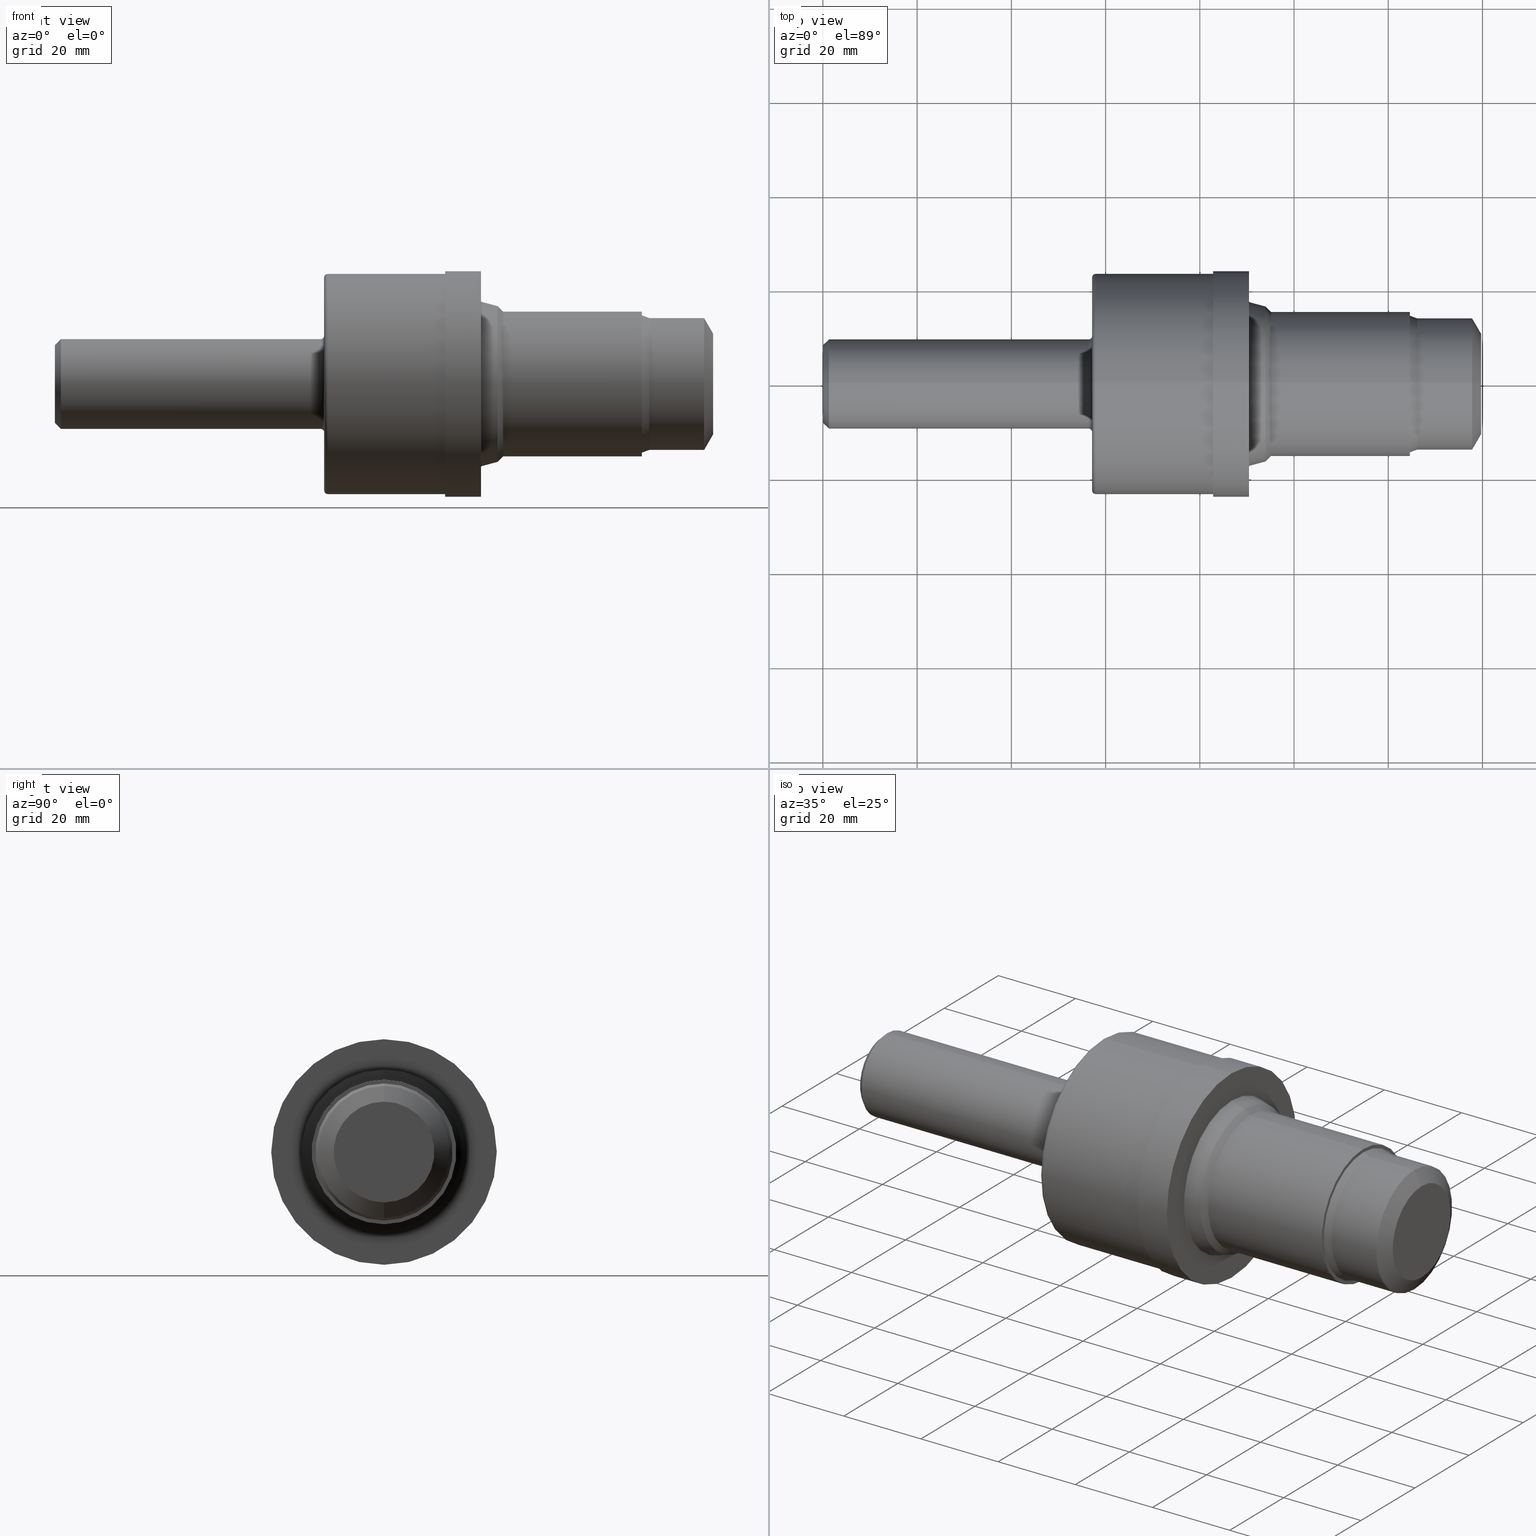
[diagram: canonical four-view strip — front | top / right | iso, engineering-drawing reading convention]
A machine part, canonical four-view strip (front | top / right | iso — engineering-drawing reading convention). The complete STEP part file that produces these views, byte-faithful:
ISO-10303-21;
HEADER;
FILE_DESCRIPTION (( 'STEP AP214' ),
    '1' );
FILE_NAME ('C16-2-ROUGH-X8.STEP',
    '2020-02-24T17:47:05',
    ( '' ),
    ( '' ),
    'SwSTEP 2.0',
    'SolidWorks 2018',
    '' );
FILE_SCHEMA (( 'AUTOMOTIVE_DESIGN' ));
ENDSEC;

DATA;
#1 = ORIENTED_EDGE ( 'NONE', *, *, #497, .T. ) ;
#2 = CIRCLE ( 'NONE', #286, 0.9425000000000000044 ) ;
#3 = CARTESIAN_POINT ( 'NONE',  ( 4.905000000000000249, 0.0000000000000000000, 0.0000000000000000000 ) ) ;
#4 = AXIS2_PLACEMENT_3D ( 'NONE', #303, #233, #90 ) ;
#5 = DIRECTION ( 'NONE',  ( 0.0000000000000000000, 0.0000000000000000000, 1.000000000000000000 ) ) ;
#6 = CARTESIAN_POINT ( 'NONE',  ( 0.0000000000000000000, 0.0000000000000000000, 0.0000000000000000000 ) ) ;
#7 = AXIS2_PLACEMENT_3D ( 'NONE', #670, #56, #376 ) ;
#8 = FACE_OUTER_BOUND ( 'NONE', #538, .T. ) ;
#9 = DIRECTION ( 'NONE',  ( 0.0000000000000000000, 0.0000000000000000000, -1.000000000000000000 ) ) ;
#10 = CARTESIAN_POINT ( 'NONE',  ( 0.0000000000000000000, 0.0000000000000000000, 0.0000000000000000000 ) ) ;
#11 = CARTESIAN_POINT ( 'NONE',  ( 0.0000000000000000000, 0.0000000000000000000, 0.3748500000000002386 ) ) ;
#12 = ADVANCED_FACE ( 'NONE', ( #463 ), #157, .F. ) ;
#13 =( GEOMETRIC_REPRESENTATION_CONTEXT ( 3 ) GLOBAL_UNCERTAINTY_ASSIGNED_CONTEXT ( ( #192 ) ) GLOBAL_UNIT_ASSIGNED_CONTEXT ( ( #537, #597, #529 ) ) REPRESENTATION_CONTEXT ( 'NONE', 'WORKASPACE' ) );
#14 = CONICAL_SURFACE ( 'NONE', #486, 0.6507730114445050562, 0.2617993877991498519 ) ;
#15 = ADVANCED_FACE ( 'NONE', ( #93, #337 ), #437, .F. ) ;
#16 = DIRECTION ( 'NONE',  ( -1.000000000000000000, -0.0000000000000000000, -0.0000000000000000000 ) ) ;
#17 = DIRECTION ( 'NONE',  ( -1.000000000000000000, 0.0000000000000000000, -0.0000000000000000000 ) ) ;
#18 = ADVANCED_FACE ( 'NONE', ( #66 ), #350, .F. ) ;
#19 = DIRECTION ( 'NONE',  ( 0.0000000000000000000, 0.0000000000000000000, 1.000000000000000000 ) ) ;
#20 = ADVANCED_FACE ( 'NONE', ( #305 ), #728, .T. ) ;
#21 = VECTOR ( 'NONE', #496, 39.37007874015748854 ) ;
#22 = VERTEX_POINT ( 'NONE', #231 ) ;
#23 = ADVANCED_FACE ( 'NONE', ( #642, #675 ), #659, .F. ) ;
#24 = ORIENTED_EDGE ( 'NONE', *, *, #535, .T. ) ;
#25 = CIRCLE ( 'NONE', #414, 0.007999999999999887410 ) ;
#26 = CARTESIAN_POINT ( 'NONE',  ( 4.905000000000000249, 0.6045000000000000373, 0.0000000000000000000 ) ) ;
#27 = ADVANCED_FACE ( 'NONE', ( #672 ), #14, .T. ) ;
#28 = ADVANCED_FACE ( 'NONE', ( #846 ), #322, .T. ) ;
#29 = DIRECTION ( 'NONE',  ( -1.000000000000000000, -0.0000000000000000000, -0.0000000000000000000 ) ) ;
#30 = ADVANCED_FACE ( 'NONE', ( #673 ), #428, .F. ) ;
#31 = DIRECTION ( 'NONE',  ( 0.0000000000000000000, 0.0000000000000000000, 1.000000000000000000 ) ) ;
#32 = CARTESIAN_POINT ( 'NONE',  ( 3.568999999999999950, 0.0000000000000000000, 0.0000000000000000000 ) ) ;
#33 = ADVANCED_FACE ( 'NONE', ( #682 ), #358, .T. ) ;
#34 = VERTEX_POINT ( 'NONE', #311 ) ;
#35 = ADVANCED_FACE ( 'NONE', ( #467 ), #57, .T. ) ;
#36 = CARTESIAN_POINT ( 'NONE',  ( 0.0000000000000000000, 6.746579216502770273E-17, -0.5509000000000000563 ) ) ;
#37 = ORIENTED_EDGE ( 'NONE', *, *, #867, .T. ) ;
#38 = CYLINDRICAL_SURFACE ( 'NONE', #442, 0.9200000000000000400 ) ;
#39 = MECHANICAL_DESIGN_GEOMETRIC_PRESENTATION_REPRESENTATION (  '', ( #58 ), #13 ) ;
#40 = ADVANCED_FACE ( 'NONE', ( #736 ), #654, .T. ) ;
#41 = ADVANCED_FACE ( 'NONE', ( #834 ), #458, .T. ) ;
#42 = FILL_AREA_STYLE ('',( #198 ) ) ;
#43 = DIRECTION ( 'NONE',  ( -1.000000000000000000, -0.0000000000000000000, -0.0000000000000000000 ) ) ;
#44 = ADVANCED_FACE ( 'NONE', ( #480 ), #85, .T. ) ;
#45 = ADVANCED_FACE ( 'NONE', ( #635, #798 ), #777, .F. ) ;
#46 = CARTESIAN_POINT ( 'NONE',  ( 5.500000000000000000, 0.0000000000000000000, 0.4209961894323342446 ) ) ;
#47 = DIRECTION ( 'NONE',  ( -1.000000000000000000, -0.0000000000000000000, -0.0000000000000000000 ) ) ;
#48 = LINE ( 'NONE', #76, #745 ) ;
#49 = VERTEX_POINT ( 'NONE', #832 ) ;
#50 = ADVANCED_FACE ( 'NONE', ( #781 ), #615, .T. ) ;
#51 = ORIENTED_EDGE ( 'NONE', *, *, #203, .F. ) ;
#52 = CIRCLE ( 'NONE', #656, 0.9425000000000000044 ) ;
#53 = PRESENTATION_LAYER_ASSIGNMENT (  '', '', ( #58 ) ) ;
#54 = ADVANCED_FACE ( 'NONE', ( #167 ), #756, .T. ) ;
#55 = ADVANCED_FACE ( 'NONE', ( #281 ), #416, .T. ) ;
#56 = DIRECTION ( 'NONE',  ( -1.000000000000000000, -0.0000000000000000000, -0.0000000000000000000 ) ) ;
#57 = CYLINDRICAL_SURFACE ( 'NONE', #666, 0.9425000000000000044 ) ;
#58 = STYLED_ITEM ( 'NONE', ( #862 ), #857 ) ;
#59 = DIRECTION ( 'NONE',  ( 0.0000000000000000000, 0.0000000000000000000, 1.000000000000000000 ) ) ;
#60 = VERTEX_POINT ( 'NONE', #375 ) ;
#61 = FACE_OUTER_BOUND ( 'NONE', #859, .T. ) ;
#62 = EDGE_LOOP ( 'NONE', ( #515, #331, #279, #830 ) ) ;
#63 = CIRCLE ( 'NONE', #92, 0.3248500000000002497 ) ;
#64 = CARTESIAN_POINT ( 'NONE',  ( 0.05000000000000000278, 4.590588526603853748E-17, 0.3748500000000000165 ) ) ;
#65 = DIRECTION ( 'NONE',  ( 0.0000000000000000000, 0.0000000000000000000, -1.000000000000000000 ) ) ;
#66 = FACE_OUTER_BOUND ( 'NONE', #62, .T. ) ;
#67 = CARTESIAN_POINT ( 'NONE',  ( 2.279999999999999805, 0.0000000000000000000, 0.9200000000000000400 ) ) ;
#68 = ADVANCED_FACE ( 'NONE', ( #235 ), #431, .T. ) ;
#69 = CARTESIAN_POINT ( 'NONE',  ( 3.566929447639179962, 8.403051286603852342E-17, -0.6861612092935190921 ) ) ;
#70 = AXIS2_PLACEMENT_3D ( 'NONE', #266, #470, #508 ) ;
#71 = CIRCLE ( 'NONE', #632, 0.9200000000000000400 ) ;
#72 = ORIENTED_EDGE ( 'NONE', *, *, #721, .T. ) ;
#73 = ORIENTED_EDGE ( 'NONE', *, *, #216, .F. ) ;
#74 = LINE ( 'NONE', #856, #769 ) ;
#75 = ADVANCED_FACE ( 'NONE', ( #600 ), #38, .T. ) ;
#76 = CARTESIAN_POINT ( 'NONE',  ( 0.0000000000000000000, 0.0000000000000000000, 0.9200000000000000400 ) ) ;
#77 = ADVANCED_FACE ( 'NONE', ( #297, #741 ), #308, .F. ) ;
#78 = ORIENTED_EDGE ( 'NONE', *, *, #216, .T. ) ;
#79 = DIRECTION ( 'NONE',  ( 0.0000000000000000000, 0.0000000000000000000, 1.000000000000000000 ) ) ;
#80 = ADVANCED_FACE ( 'NONE', ( #123 ), #722, .T. ) ;
#81 =( GEOMETRIC_REPRESENTATION_CONTEXT ( 3 ) GLOBAL_UNCERTAINTY_ASSIGNED_CONTEXT ( ( #847 ) ) GLOBAL_UNIT_ASSIGNED_CONTEXT ( ( #335, #399, #401 ) ) REPRESENTATION_CONTEXT ( 'NONE', 'WORKASPACE' ) );
#82 = ADVANCED_FACE ( 'NONE', ( #61 ), #262, .T. ) ;
#83 = VERTEX_POINT ( 'NONE', #173 ) ;
#84 = DIRECTION ( 'NONE',  ( -1.000000000000000000, -0.0000000000000000000, -0.0000000000000000000 ) ) ;
#85 = CONICAL_SURFACE ( 'NONE', #873, 0.5509000000000000563, 0.3490658503988409156 ) ;
#86 = LINE ( 'NONE', #842, #636 ) ;
#87 = ORIENTED_EDGE ( 'NONE', *, *, #110, .F. ) ;
#88 = ADVANCED_FACE ( 'NONE', ( #215 ), #572, .T. ) ;
#89 = DIRECTION ( 'NONE',  ( 0.0000000000000000000, 0.0000000000000000000, 1.000000000000000000 ) ) ;
#90 = DIRECTION ( 'NONE',  ( 0.0000000000000000000, 0.0000000000000000000, 1.000000000000000000 ) ) ;
#91 = ADVANCED_FACE ( 'NONE', ( #367 ), #861, .T. ) ;
#92 = AXIS2_PLACEMENT_3D ( 'NONE', #179, #332, #345 ) ;
#93 = FACE_OUTER_BOUND ( 'NONE', #190, .T. ) ;
#94 = ADVANCED_FACE ( 'NONE', ( #392 ), #550, .F. ) ;
#95 = PLANE ( 'NONE',  #531 ) ;
#96 = ADVANCED_FACE ( 'NONE', ( #527 ), #695, .F. ) ;
#97 = DIRECTION ( 'NONE',  ( 0.0000000000000000000, 0.0000000000000000000, 1.000000000000000000 ) ) ;
#98 = EDGE_CURVE ( 'NONE', #239, #83, #193, .T. ) ;
#99 = DIRECTION ( 'NONE',  ( -0.9396926207859168656, 4.188538737676702721E-17, -0.3420201433256451762 ) ) ;
#100 = CIRCLE ( 'NONE', #499, 0.9425000000000000044 ) ;
#101 = ORIENTED_EDGE ( 'NONE', *, *, #744, .T. ) ;
#102 = CARTESIAN_POINT ( 'NONE',  ( 2.279999999999999805, 1.089935651241144406E-16, -0.8900000000000000133 ) ) ;
#103 = ORIENTED_EDGE ( 'NONE', *, *, #698, .T. ) ;
#104 = DIRECTION ( 'NONE',  ( -1.000000000000000000, -0.0000000000000000000, -0.0000000000000000000 ) ) ;
#105 = ADVANCED_FACE ( 'NONE', ( #168 ), #500, .T. ) ;
#106 = CIRCLE ( 'NONE', #206, 0.02999999999999988440 ) ;
#107 = ADVANCED_FACE ( 'NONE', ( #8 ), #660, .T. ) ;
#108 = CARTESIAN_POINT ( 'NONE',  ( 3.261000000000000121, 0.0000000000000000000, 0.0000000000000000000 ) ) ;
#109 = EDGE_LOOP ( 'NONE', ( #221, #202, #614, #812 ) ) ;
#110 = EDGE_CURVE ( 'NONE', #49, #417, #822, .T. ) ;
#111 = DIRECTION ( 'NONE',  ( 0.0000000000000000000, 0.0000000000000000000, 1.000000000000000000 ) ) ;
#112 = AXIS2_PLACEMENT_3D ( 'NONE', #478, #773, #522 ) ;
#113 = CARTESIAN_POINT ( 'NONE',  ( 3.699000000000000288, 0.0000000000000000000, 0.0000000000000000000 ) ) ;
#114 = ADVANCED_FACE ( 'NONE', ( #837 ), #149, .T. ) ;
#115 = ADVANCED_FACE ( 'NONE', ( #487 ), #95, .F. ) ;
#116 = DIRECTION ( 'NONE',  ( 0.0000000000000000000, 0.0000000000000000000, 1.000000000000000000 ) ) ;
#117 = CARTESIAN_POINT ( 'NONE',  ( 0.0000000000000000000, 0.0000000000000000000, 0.0000000000000000000 ) ) ;
#118 = AXIS2_PLACEMENT_3D ( 'NONE', #581, #598, #595 ) ;
#119 = DIRECTION ( 'NONE',  ( -1.000000000000000000, -0.0000000000000000000, -0.0000000000000000000 ) ) ;
#120 = ORIENTED_EDGE ( 'NONE', *, *, #872, .T. ) ;
#121 = ADVANCED_FACE ( 'NONE', ( #676 ), #471, .T. ) ;
#122 = DIRECTION ( 'NONE',  ( 0.0000000000000000000, 0.0000000000000000000, 1.000000000000000000 ) ) ;
#123 = FACE_OUTER_BOUND ( 'NONE', #584, .T. ) ;
#124 = CARTESIAN_POINT ( 'NONE',  ( 3.560999999999999943, 1.154229608196380369E-16, -0.9425000000000000044 ) ) ;
#125 = VERTEX_POINT ( 'NONE', #67 ) ;
#126 = VERTEX_POINT ( 'NONE', #374 ) ;
#127 = CARTESIAN_POINT ( 'NONE',  ( 0.0000000000000000000, 4.284426826817016740E-17, 0.3248500000000002497 ) ) ;
#128 = CARTESIAN_POINT ( 'NONE',  ( 2.279999999999999805, 0.0000000000000000000, 0.0000000000000000000 ) ) ;
#129 = AXIS2_PLACEMENT_3D ( 'NONE', #743, #302, #764 ) ;
#130 = VECTOR ( 'NONE', #568, 39.37007874015748143 ) ;
#131 = ORIENTED_EDGE ( 'NONE', *, *, #536, .T. ) ;
#132 = AXIS2_PLACEMENT_3D ( 'NONE', #128, #133, #59 ) ;
#133 = DIRECTION ( 'NONE',  ( -1.000000000000000000, -0.0000000000000000000, -0.0000000000000000000 ) ) ;
#134 = ORIENTED_EDGE ( 'NONE', *, *, #640, .T. ) ;
#135 = CIRCLE ( 'NONE', #112, 0.5734661545245026693 ) ;
#136 = CARTESIAN_POINT ( 'NONE',  ( 3.568999999999999950, 0.0000000000000000000, 0.6938886159038315515 ) ) ;
#137 = DIRECTION ( 'NONE',  ( 0.0000000000000000000, -1.000000000000000000, 0.0000000000000000000 ) ) ;
#138 = ORIENTED_EDGE ( 'NONE', *, *, #408, .F. ) ;
#139 = CARTESIAN_POINT ( 'NONE',  ( 4.905000000000000249, 0.0000000000000000000, 0.0000000000000000000 ) ) ;
#140 = AXIS2_PLACEMENT_3D ( 'NONE', #650, #648, #603 ) ;
#141 = CARTESIAN_POINT ( 'NONE',  ( 3.699000000000000288, 0.0000000000000000000, 0.6507730114445050562 ) ) ;
#142 = CARTESIAN_POINT ( 'NONE',  ( 3.560999999999999943, 0.0000000000000000000, 0.0000000000000000000 ) ) ;
#143 = ORIENTED_EDGE ( 'NONE', *, *, #638, .F. ) ;
#144 = DIMENSIONAL_EXPONENTS ( 1.000000000000000000, 0.0000000000000000000, 0.0000000000000000000, 0.0000000000000000000, 0.0000000000000000000, 0.0000000000000000000, 0.0000000000000000000 ) ;
#145 = DIRECTION ( 'NONE',  ( -1.000000000000000000, -0.0000000000000000000, -0.0000000000000000000 ) ) ;
#146 = AXIS2_PLACEMENT_3D ( 'NONE', #139, #353, #438 ) ;
#147 = DIMENSIONAL_EXPONENTS ( 1.000000000000000000, 0.0000000000000000000, 0.0000000000000000000, 0.0000000000000000000, 0.0000000000000000000, 0.0000000000000000000, 0.0000000000000000000 ) ;
#148 = DIRECTION ( 'NONE',  ( 0.0000000000000000000, 0.0000000000000000000, 1.000000000000000000 ) ) ;
#149 = TOROIDAL_SURFACE ( 'NONE', #592, 0.8900000000000000133, 0.02999999999999995379 ) ;
#150 = ORIENTED_EDGE ( 'NONE', *, *, #740, .T. ) ;
#151 = DIRECTION ( 'NONE',  ( 0.0000000000000000000, 0.0000000000000000000, 1.000000000000000000 ) ) ;
#152 = ORIENTED_EDGE ( 'NONE', *, *, #440, .T. ) ;
#153 = CARTESIAN_POINT ( 'NONE',  ( 2.250000000000000000, 0.0000000000000000000, 0.0000000000000000000 ) ) ;
#154 = LINE ( 'NONE', #344, #840 ) ;
#155 = DIRECTION ( 'NONE',  ( -1.000000000000000000, -0.0000000000000000000, -0.0000000000000000000 ) ) ;
#156 = ORIENTED_EDGE ( 'NONE', *, *, #260, .F. ) ;
#157 = TOROIDAL_SURFACE ( 'NONE', #461, 0.4048500000000005983, 0.02999999999999988440 ) ;
#158 = AXIS2_PLACEMENT_3D ( 'NONE', #622, #145, #866 ) ;
#159 = EDGE_LOOP ( 'NONE', ( #723, #563, #379, #360 ) ) ;
#160 = DIRECTION ( 'NONE',  ( 1.000000000000000000, 0.0000000000000000000, 0.0000000000000000000 ) ) ;
#161 = EDGE_LOOP ( 'NONE', ( #342, #418, #212, #409 ) ) ;
#162 = AXIS2_PLACEMENT_3D ( 'NONE', #836, #844, #448 ) ;
#163 = CARTESIAN_POINT ( 'NONE',  ( 2.279999999999999805, 1.126675055215564921E-16, -0.9200000000000000400 ) ) ;
#164 = CARTESIAN_POINT ( 'NONE',  ( 2.279999999999999805, 0.0000000000000000000, 0.0000000000000000000 ) ) ;
#165 = CARTESIAN_POINT ( 'NONE',  ( 0.0000000000000000000, 0.0000000000000000000, 0.0000000000000000000 ) ) ;
#166 = CARTESIAN_POINT ( 'NONE',  ( 4.966999999999999638, 0.0000000000000000000, 0.0000000000000000000 ) ) ;
#167 = FACE_OUTER_BOUND ( 'NONE', #589, .T. ) ;
#168 = FACE_OUTER_BOUND ( 'NONE', #472, .T. ) ;
#169 = DIMENSIONAL_EXPONENTS ( 1.000000000000000000, 0.0000000000000000000, 0.0000000000000000000, 0.0000000000000000000, 0.0000000000000000000, 0.0000000000000000000, 0.0000000000000000000 ) ;
#170 = ORIENTED_EDGE ( 'NONE', *, *, #545, .T. ) ;
#171 = CIRCLE ( 'NONE', #306, 0.3748500000000000165 ) ;
#172 = EDGE_LOOP ( 'NONE', ( #103, #489 ) ) ;
#173 = CARTESIAN_POINT ( 'NONE',  ( 4.905000000000000249, 7.402989900845750385E-17, -0.6045000000000000373 ) ) ;
#174 =( GEOMETRIC_REPRESENTATION_CONTEXT ( 3 ) GLOBAL_UNCERTAINTY_ASSIGNED_CONTEXT ( ( #222 ) ) GLOBAL_UNIT_ASSIGNED_CONTEXT ( ( #547, #549, #664 ) ) REPRESENTATION_CONTEXT ( 'NONE', 'WORKASPACE' ) );
#175 = DIRECTION ( 'NONE',  ( -1.000000000000000000, -0.0000000000000000000, -0.0000000000000000000 ) ) ;
#176 = DIRECTION ( 'NONE',  ( -1.000000000000000000, -0.0000000000000000000, -0.0000000000000000000 ) ) ;
#177 = CARTESIAN_POINT ( 'NONE',  ( 5.424999999999999822, 0.0000000000000000000, 0.0000000000000000000 ) ) ;
#178 = CARTESIAN_POINT ( 'NONE',  ( 0.0000000000000000000, 0.0000000000000000000, 0.5509000000000000563 ) ) ;
#179 = CARTESIAN_POINT ( 'NONE',  ( 0.0000000000000000000, 0.0000000000000000000, 0.0000000000000000000 ) ) ;
#180 = EDGE_CURVE ( 'NONE', #540, #60, #309, .T. ) ;
#181 = ORIENTED_EDGE ( 'NONE', *, *, #726, .T. ) ;
#182 = CARTESIAN_POINT ( 'NONE',  ( 2.220000000000000195, 4.774285546475963101E-17, -0.3748500000000005161 ) ) ;
#183 = CIRCLE ( 'NONE', #356, 0.4209961894323342446 ) ;
#184 = DIRECTION ( 'NONE',  ( 0.7071067811865489050, 8.659560562354915602E-17, 0.7071067811865461294 ) ) ;
#185 = SURFACE_STYLE_FILL_AREA ( #328 ) ;
#186 = DIRECTION ( 'NONE',  ( -0.9659258262890679791, 3.169619151431769255E-17, -0.2588190451025211281 ) ) ;
#187 = DIRECTION ( 'NONE',  ( 0.0000000000000000000, 0.0000000000000000000, 1.000000000000000000 ) ) ;
#188 = ORIENTED_EDGE ( 'NONE', *, *, #730, .F. ) ;
#189 = DIRECTION ( 'NONE',  ( -1.000000000000000000, -0.0000000000000000000, -0.0000000000000000000 ) ) ;
#190 = EDGE_LOOP ( 'NONE', ( #571, #560 ) ) ;
#191 = MECHANICAL_DESIGN_GEOMETRIC_PRESENTATION_REPRESENTATION (  '', ( #259 ), #174 ) ;
#192 = UNCERTAINTY_MEASURE_WITH_UNIT (LENGTH_MEASURE( 1.000000000000000082E-05 ), #537, 'distance_accuracy_value', 'NONE');
#193 = CIRCLE ( 'NONE', #807, 0.6045000000000000373 ) ;
#194 = VERTEX_POINT ( 'NONE', #243 ) ;
#195 = SURFACE_STYLE_FILL_AREA ( #42 ) ;
#196 = EDGE_LOOP ( 'NONE', ( #800, #637 ) ) ;
#197 = CIRCLE ( 'NONE', #340, 0.9200000000000000400 ) ;
#198 = FILL_AREA_STYLE_COLOUR ( '', #369 ) ;
#199 = DIRECTION ( 'NONE',  ( 0.0000000000000000000, 0.0000000000000000000, 1.000000000000000000 ) ) ;
#200 = DIRECTION ( 'NONE',  ( 0.0000000000000000000, 0.0000000000000000000, -1.000000000000000000 ) ) ;
#201 = CARTESIAN_POINT ( 'NONE',  ( 4.966999999999999638, 0.0000000000000000000, 0.5509000000000000563 ) ) ;
#202 = ORIENTED_EDGE ( 'NONE', *, *, #260, .T. ) ;
#203 = EDGE_CURVE ( 'NONE', #194, #417, #809, .T. ) ;
#204 = LINE ( 'NONE', #518, #874 ) ;
#205 = EDGE_LOOP ( 'NONE', ( #227, #296, #606, #789 ) ) ;
#206 = AXIS2_PLACEMENT_3D ( 'NONE', #419, #278, #65 ) ;
#207 = DIRECTION ( 'NONE',  ( -0.9396926207859168656, 0.0000000000000000000, 0.3420201433256451762 ) ) ;
#208 = ORIENTED_EDGE ( 'NONE', *, *, #619, .F. ) ;
#209 = VECTOR ( 'NONE', #207, 39.37007874015748854 ) ;
#210 = CARTESIAN_POINT ( 'NONE',  ( 3.745273011444504974, 7.402989900845750385E-17, -0.6045000000000000373 ) ) ;
#211 = AXIS2_PLACEMENT_3D ( 'NONE', #153, #29, #519 ) ;
#212 = ORIENTED_EDGE ( 'NONE', *, *, #638, .T. ) ;
#213 = CARTESIAN_POINT ( 'NONE',  ( 2.250000000000000000, 0.0000000000000000000, 0.0000000000000000000 ) ) ;
#214 = DIRECTION ( 'NONE',  ( -1.000000000000000000, -0.0000000000000000000, -0.0000000000000000000 ) ) ;
#215 = FACE_OUTER_BOUND ( 'NONE', #684, .T. ) ;
#216 = EDGE_CURVE ( 'NONE', #239, #748, #351, .T. ) ;
#217 = EDGE_LOOP ( 'NONE', ( #780, #625, #488, #875 ) ) ;
#218 = ORIENTED_EDGE ( 'NONE', *, *, #720, .T. ) ;
#219 = ORIENTED_EDGE ( 'NONE', *, *, #323, .T. ) ;
#220 = CARTESIAN_POINT ( 'NONE',  ( 2.250000000000000000, 0.0000000000000000000, 0.0000000000000000000 ) ) ;
#221 = ORIENTED_EDGE ( 'NONE', *, *, #483, .T. ) ;
#222 = UNCERTAINTY_MEASURE_WITH_UNIT (LENGTH_MEASURE( 1.000000000000000082E-05 ), #547, 'distance_accuracy_value', 'NONE');
#223 = DIRECTION ( 'NONE',  ( -1.000000000000000000, -0.0000000000000000000, -0.0000000000000000000 ) ) ;
#224 = AXIS2_PLACEMENT_3D ( 'NONE', #117, #782, #406 ) ;
#225 = DIRECTION ( 'NONE',  ( -0.0000000000000000000, 1.000000000000000000, 1.224646799147353207E-16 ) ) ;
#226 = LINE ( 'NONE', #230, #731 ) ;
#227 = ORIENTED_EDGE ( 'NONE', *, *, #564, .F. ) ;
#228 = CARTESIAN_POINT ( 'NONE',  ( 4.905000000000000249, 0.0000000000000000000, 0.5734661545245026693 ) ) ;
#229 = VECTOR ( 'NONE', #854, 39.37007874015748854 ) ;
#230 = CARTESIAN_POINT ( 'NONE',  ( 0.0000000000000000000, 4.590588526603856213E-17, -0.3748500000000002386 ) ) ;
#231 = CARTESIAN_POINT ( 'NONE',  ( 3.261000000000000121, 0.0000000000000000000, 0.9425000000000000044 ) ) ;
#232 = PRESENTATION_LAYER_ASSIGNMENT (  '', '', ( #259 ) ) ;
#233 = DIRECTION ( 'NONE',  ( -1.000000000000000000, -0.0000000000000000000, -0.0000000000000000000 ) ) ;
#234 = ORIENTED_EDGE ( 'NONE', *, *, #382, .T. ) ;
#235 = FACE_OUTER_BOUND ( 'NONE', #217, .T. ) ;
#236 = ORIENTED_EDGE ( 'NONE', *, *, #265, .F. ) ;
#237 = DIRECTION ( 'NONE',  ( -1.000000000000000000, -0.0000000000000000000, -0.0000000000000000000 ) ) ;
#238 = LENGTH_MEASURE_WITH_UNIT ( LENGTH_MEASURE( 0.02539999999999999897 ), #324 );
#239 = VERTEX_POINT ( 'NONE', #505 ) ;
#240 = AXIS2_PLACEMENT_3D ( 'NONE', #443, #618, #557 ) ;
#241 = AXIS2_PLACEMENT_3D ( 'NONE', #329, #580, #587 ) ;
#242 = CARTESIAN_POINT ( 'NONE',  ( 3.699000000000000288, 0.0000000000000000000, 0.0000000000000000000 ) ) ;
#243 = CARTESIAN_POINT ( 'NONE',  ( 5.424999999999999822, 0.0000000000000000000, 0.5509000000000001673 ) ) ;
#244 = CIRCLE ( 'NONE', #553, 0.4209961894323342446 ) ;
#245 = CARTESIAN_POINT ( 'NONE',  ( 4.966999999999999638, 0.0000000000000000000, 0.0000000000000000000 ) ) ;
#246 = EDGE_LOOP ( 'NONE', ( #732, #131, #261, #381 ) ) ;
#247 = CARTESIAN_POINT ( 'NONE',  ( 0.05000000000000000278, 4.590588526603855597E-17, -0.3748500000000000165 ) ) ;
#248 = ORIENTED_EDGE ( 'NONE', *, *, #759, .F. ) ;
#249 = CIRCLE ( 'NONE', #667, 0.02999999999999995379 ) ;
#250 = CARTESIAN_POINT ( 'NONE',  ( 5.500000000000000000, 5.951147787459089409E-17, -0.4209961894323342446 ) ) ;
#251 = EDGE_CURVE ( 'NONE', #481, #462, #330, .T. ) ;
#252 = DIRECTION ( 'NONE',  ( 0.0000000000000000000, 0.0000000000000000000, 1.000000000000000000 ) ) ;
#253 = AXIS2_PLACEMENT_3D ( 'NONE', #453, #397, #389 ) ;
#254 = DIRECTION ( 'NONE',  ( -0.7071067811865449082, 0.0000000000000000000, 0.7071067811865501263 ) ) ;
#255 = DIRECTION ( 'NONE',  ( 1.000000000000000000, 0.0000000000000000000, 0.0000000000000000000 ) ) ;
#256 = DIRECTION ( 'NONE',  ( -1.000000000000000000, -0.0000000000000000000, -0.0000000000000000000 ) ) ;
#257 = CARTESIAN_POINT ( 'NONE',  ( 3.261000000000000121, 0.0000000000000000000, 0.0000000000000000000 ) ) ;
#258 = DIRECTION ( 'NONE',  ( 0.0000000000000000000, 0.0000000000000000000, 1.000000000000000000 ) ) ;
#259 = STYLED_ITEM ( 'NONE', ( #853 ), #804 ) ;
#260 = EDGE_CURVE ( 'NONE', #433, #634, #289, .T. ) ;
#261 = ORIENTED_EDGE ( 'NONE', *, *, #395, .T. ) ;
#262 = CYLINDRICAL_SURFACE ( 'NONE', #4, 0.9200000000000000400 ) ;
#263 = DIRECTION ( 'NONE',  ( 0.0000000000000000000, 0.0000000000000000000, -1.000000000000000000 ) ) ;
#264 = ORIENTED_EDGE ( 'NONE', *, *, #570, .F. ) ;
#265 = EDGE_CURVE ( 'NONE', #22, #706, #100, .T. ) ;
#266 = CARTESIAN_POINT ( 'NONE',  ( 4.966999999999999638, 0.0000000000000000000, 0.0000000000000000000 ) ) ;
#267 = DIRECTION ( 'NONE',  ( 0.0000000000000000000, 0.0000000000000000000, 1.000000000000000000 ) ) ;
#268 = VERTEX_POINT ( 'NONE', #510 ) ;
#269 = AXIS2_PLACEMENT_3D ( 'NONE', #590, #16, #579 ) ;
#270 = CIRCLE ( 'NONE', #492, 0.3748500000000000165 ) ;
#271 = ORIENTED_EDGE ( 'NONE', *, *, #776, .F. ) ;
#272 = ORIENTED_EDGE ( 'NONE', *, *, #203, .T. ) ;
#273 = CIRCLE ( 'NONE', #7, 0.8900000000000000133 ) ;
#274 = DIRECTION ( 'NONE',  ( -1.000000000000000000, -0.0000000000000000000, -0.0000000000000000000 ) ) ;
#275 = APPLICATION_CONTEXT ( 'automotive_design' ) ;
#276 = ORIENTED_EDGE ( 'NONE', *, *, #476, .T. ) ;
#277 = CARTESIAN_POINT ( 'NONE',  ( 5.424999999999999822, 0.0000000000000000000, 0.0000000000000000000 ) ) ;
#278 = DIRECTION ( 'NONE',  ( 0.0000000000000000000, -1.000000000000000000, 0.0000000000000000000 ) ) ;
#279 = ORIENTED_EDGE ( 'NONE', *, *, #770, .T. ) ;
#280 = DIRECTION ( 'NONE',  ( 0.0000000000000000000, 0.0000000000000000000, 1.000000000000000000 ) ) ;
#281 = FACE_OUTER_BOUND ( 'NONE', #835, .T. ) ;
#282 = ORIENTED_EDGE ( 'NONE', *, *, #349, .T. ) ;
#283 = ORIENTED_EDGE ( 'NONE', *, *, #759, .T. ) ;
#284 = DIRECTION ( 'NONE',  ( -1.000000000000000000, -0.0000000000000000000, -0.0000000000000000000 ) ) ;
#285 = CARTESIAN_POINT ( 'NONE',  ( 3.261000000000000121, 1.154229608196380369E-16, -0.9425000000000000044 ) ) ;
#286 = AXIS2_PLACEMENT_3D ( 'NONE', #142, #514, #525 ) ;
#287 = CARTESIAN_POINT ( 'NONE',  ( 5.500000000000000000, 0.0000000000000000000, 0.0000000000000000000 ) ) ;
#288 = DIRECTION ( 'NONE',  ( -1.000000000000000000, -0.0000000000000000000, -0.0000000000000000000 ) ) ;
#289 = LINE ( 'NONE', #498, #624 ) ;
#290 = VERTEX_POINT ( 'NONE', #250 ) ;
#291 = CARTESIAN_POINT ( 'NONE',  ( 3.568999999999999950, 8.497684724314145644E-17, -0.6938886159038315515 ) ) ;
#292 = VECTOR ( 'NONE', #869, 39.37007874015748143 ) ;
#293 = ORIENTED_EDGE ( 'NONE', *, *, #408, .T. ) ;
#294 = DIRECTION ( 'NONE',  ( -1.000000000000000000, -0.0000000000000000000, -0.0000000000000000000 ) ) ;
#295 = AXIS2_PLACEMENT_3D ( 'NONE', #372, #449, #402 ) ;
#296 = ORIENTED_EDGE ( 'NONE', *, *, #349, .F. ) ;
#297 = FACE_OUTER_BOUND ( 'NONE', #196, .T. ) ;
#298 = DIRECTION ( 'NONE',  ( -0.0000000000000000000, 0.0000000000000000000, 1.000000000000000000 ) ) ;
#299 = AXIS2_PLACEMENT_3D ( 'NONE', #412, #385, #327 ) ;
#300 = EDGE_CURVE ( 'NONE', #417, #49, #788, .T. ) ;
#301 = ORIENTED_EDGE ( 'NONE', *, *, #578, .T. ) ;
#302 = DIRECTION ( 'NONE',  ( -1.000000000000000000, -0.0000000000000000000, -0.0000000000000000000 ) ) ;
#303 = CARTESIAN_POINT ( 'NONE',  ( 0.0000000000000000000, 0.0000000000000000000, 0.0000000000000000000 ) ) ;
#304 = CARTESIAN_POINT ( 'NONE',  ( 3.261000000000000121, 0.0000000000000000000, 0.0000000000000000000 ) ) ;
#305 = FACE_OUTER_BOUND ( 'NONE', #801, .T. ) ;
#306 = AXIS2_PLACEMENT_3D ( 'NONE', #551, #802, #373 ) ;
#307 = DIRECTION ( 'NONE',  ( -1.000000000000000000, -0.0000000000000000000, -0.0000000000000000000 ) ) ;
#308 = PLANE ( 'NONE',  #435 ) ;
#309 = CIRCLE ( 'NONE', #520, 0.4048500000000005983 ) ;
#310 = ORIENTED_EDGE ( 'NONE', *, *, #701, .F. ) ;
#311 = CARTESIAN_POINT ( 'NONE',  ( 3.560999999999999943, 0.0000000000000000000, 0.6938886159038315515 ) ) ;
#312 = CIRCLE ( 'NONE', #240, 0.6861612092935190921 ) ;
#313 = AXIS2_PLACEMENT_3D ( 'NONE', #277, #601, #387 ) ;
#314 = ORIENTED_EDGE ( 'NONE', *, *, #872, .F. ) ;
#315 = CARTESIAN_POINT ( 'NONE',  ( 4.966999999999999638, 0.0000000000000000000, 0.5509000000000000563 ) ) ;
#316 = PRODUCT_DEFINITION_FORMATION_WITH_SPECIFIED_SOURCE ( 'ANY', '', #848, .NOT_KNOWN. ) ;
#317 = EDGE_LOOP ( 'NONE', ( #282, #761, #661, #746 ) ) ;
#318 = AXIS2_PLACEMENT_3D ( 'NONE', #484, #403, #388 ) ;
#319 = DIRECTION ( 'NONE',  ( 0.0000000000000000000, 0.0000000000000000000, 1.000000000000000000 ) ) ;
#320 = DIRECTION ( 'NONE',  ( 1.000000000000000000, 0.0000000000000000000, 0.0000000000000000000 ) ) ;
#321 = ORIENTED_EDGE ( 'NONE', *, *, #180, .F. ) ;
#322 = CONICAL_SURFACE ( 'NONE', #70, 0.5509000000000000563, 0.3490658503988409156 ) ;
#323 = EDGE_CURVE ( 'NONE', #870, #630, #270, .T. ) ;
#324 =( LENGTH_UNIT ( ) NAMED_UNIT ( * ) SI_UNIT ( $, .METRE. ) );
#325 = DIRECTION ( 'NONE',  ( -1.000000000000000000, -0.0000000000000000000, -0.0000000000000000000 ) ) ;
#326 = AXIS2_PLACEMENT_3D ( 'NONE', #596, #450, #765 ) ;
#327 = DIRECTION ( 'NONE',  ( 0.0000000000000000000, 0.0000000000000000000, 1.000000000000000000 ) ) ;
#328 = FILL_AREA_STYLE ('',( #475 ) ) ;
#329 = CARTESIAN_POINT ( 'NONE',  ( 0.0000000000000000000, 0.0000000000000000000, 0.0000000000000000000 ) ) ;
#330 = CIRCLE ( 'NONE', #482, 0.02999999999999995379 ) ;
#331 = ORIENTED_EDGE ( 'NONE', *, *, #582, .F. ) ;
#332 = DIRECTION ( 'NONE',  ( -1.000000000000000000, -0.0000000000000000000, -0.0000000000000000000 ) ) ;
#333 = ORIENTED_EDGE ( 'NONE', *, *, #413, .F. ) ;
#334 = FACE_OUTER_BOUND ( 'NONE', #574, .T. ) ;
#335 =( CONVERSION_BASED_UNIT ( 'INCH', #238 ) LENGTH_UNIT ( ) NAMED_UNIT ( #144 ) );
#336 = CARTESIAN_POINT ( 'NONE',  ( 0.0000000000000000000, 0.0000000000000000000, 0.0000000000000000000 ) ) ;
#337 = FACE_BOUND ( 'NONE', #524, .T. ) ;
#338 = APPLICATION_PROTOCOL_DEFINITION ( 'draft international standard', 'automotive_design', 1998, #275 ) ;
#339 = CARTESIAN_POINT ( 'NONE',  ( 0.05000000000000000278, 0.0000000000000000000, -0.3748500000000000165 ) ) ;
#340 = AXIS2_PLACEMENT_3D ( 'NONE', #257, #223, #645 ) ;
#341 = DIRECTION ( 'NONE',  ( -1.000000000000000000, -0.0000000000000000000, -0.0000000000000000000 ) ) ;
#342 = ORIENTED_EDGE ( 'NONE', *, *, #763, .F. ) ;
#343 = DIRECTION ( 'NONE',  ( 0.0000000000000000000, 0.0000000000000000000, 1.000000000000000000 ) ) ;
#344 = CARTESIAN_POINT ( 'NONE',  ( 4.966999999999999638, 6.746579216502770273E-17, -0.5509000000000000563 ) ) ;
#345 = DIRECTION ( 'NONE',  ( 0.0000000000000000000, 0.0000000000000000000, 1.000000000000000000 ) ) ;
#346 = PRODUCT_RELATED_PRODUCT_CATEGORY ( 'part', '', ( #848 ) ) ;
#347 = VERTEX_POINT ( 'NONE', #228 ) ;
#348 = DIRECTION ( 'NONE',  ( 0.0000000000000000000, 0.0000000000000000000, 1.000000000000000000 ) ) ;
#349 = EDGE_CURVE ( 'NONE', #126, #754, #766, .T. ) ;
#350 = TOROIDAL_SURFACE ( 'NONE', #616, 0.6938886159038315515, 0.007999999999999897818 ) ;
#351 = LINE ( 'NONE', #681, #643 ) ;
#352 = EDGE_LOOP ( 'NONE', ( #444, #742, #272, #87 ) ) ;
#353 = DIRECTION ( 'NONE',  ( -1.000000000000000000, -0.0000000000000000000, -0.0000000000000000000 ) ) ;
#354 = ORIENTED_EDGE ( 'NONE', *, *, #855, .T. ) ;
#355 = VECTOR ( 'NONE', #175, 39.37007874015748143 ) ;
#356 = AXIS2_PLACEMENT_3D ( 'NONE', #669, #284, #348 ) ;
#357 = ORIENTED_EDGE ( 'NONE', *, *, #793, .F. ) ;
#358 = CONICAL_SURFACE ( 'NONE', #295, 0.6045000000000000373, 0.7853981633974520538 ) ;
#359 = CARTESIAN_POINT ( 'NONE',  ( 3.745273011444504974, 0.0000000000000000000, 0.0000000000000000000 ) ) ;
#360 = ORIENTED_EDGE ( 'NONE', *, *, #692, .F. ) ;
#361 = AXIS2_PLACEMENT_3D ( 'NONE', #871, #717, #258 ) ;
#362 = VECTOR ( 'NONE', #254, 39.37007874015748143 ) ;
#363 = VERTEX_POINT ( 'NONE', #768 ) ;
#364 = CIRCLE ( 'NONE', #162, 0.6045000000000000373 ) ;
#365 = DIRECTION ( 'NONE',  ( 0.0000000000000000000, 0.0000000000000000000, 1.000000000000000000 ) ) ;
#366 = DIRECTION ( 'NONE',  ( 0.0000000000000000000, 0.0000000000000000000, 1.000000000000000000 ) ) ;
#367 = FACE_OUTER_BOUND ( 'NONE', #352, .T. ) ;
#368 = AXIS2_PLACEMENT_3D ( 'NONE', #459, #465, #469 ) ;
#369 = COLOUR_RGB ( '',0.7529411764705882248, 0.7529411764705882248, 0.7529411764705882248 ) ;
#370 = ORIENTED_EDGE ( 'NONE', *, *, #300, .T. ) ;
#371 = ORIENTED_EDGE ( 'NONE', *, *, #565, .T. ) ;
#372 = CARTESIAN_POINT ( 'NONE',  ( 3.745273011444504974, 0.0000000000000000000, 0.0000000000000000000 ) ) ;
#373 = DIRECTION ( 'NONE',  ( 0.0000000000000000000, 0.0000000000000000000, 1.000000000000000000 ) ) ;
#374 = CARTESIAN_POINT ( 'NONE',  ( 2.220000000000000195, 0.0000000000000000000, 0.3748500000000005161 ) ) ;
#375 = CARTESIAN_POINT ( 'NONE',  ( 2.250000000000000000, 4.957982566348066292E-17, -0.4048500000000005983 ) ) ;
#376 = DIRECTION ( 'NONE',  ( 0.0000000000000000000, 0.0000000000000000000, 1.000000000000000000 ) ) ;
#377 = CARTESIAN_POINT ( 'NONE',  ( 0.05000000000000000278, 0.0000000000000000000, 0.0000000000000000000 ) ) ;
#378 = CARTESIAN_POINT ( 'NONE',  ( 3.261000000000000121, 0.9200000000000000400, 0.0000000000000000000 ) ) ;
#379 = ORIENTED_EDGE ( 'NONE', *, *, #686, .T. ) ;
#380 = CIRCLE ( 'NONE', #361, 0.6507730114445050562 ) ;
#381 = ORIENTED_EDGE ( 'NONE', *, *, #841, .F. ) ;
#382 = EDGE_CURVE ( 'NONE', #754, #126, #441, .T. ) ;
#383 = CIRCLE ( 'NONE', #368, 0.6045000000000000373 ) ;
#384 = AXIS2_PLACEMENT_3D ( 'NONE', #291, #805, #422 ) ;
#385 = DIRECTION ( 'NONE',  ( -1.000000000000000000, -0.0000000000000000000, -0.0000000000000000000 ) ) ;
#386 = DIRECTION ( 'NONE',  ( 0.0000000000000000000, 0.0000000000000000000, 1.000000000000000000 ) ) ;
#387 = DIRECTION ( 'NONE',  ( 0.0000000000000000000, 0.0000000000000000000, 1.000000000000000000 ) ) ;
#388 = DIRECTION ( 'NONE',  ( 0.0000000000000000000, 0.0000000000000000000, 1.000000000000000000 ) ) ;
#389 = DIRECTION ( 'NONE',  ( -0.0000000000000000000, 0.0000000000000000000, 1.000000000000000000 ) ) ;
#390 = EDGE_CURVE ( 'NONE', #734, #532, #605, .T. ) ;
#391 = ORIENTED_EDGE ( 'NONE', *, *, #763, .T. ) ;
#392 = FACE_OUTER_BOUND ( 'NONE', #205, .T. ) ;
#393 = ORIENTED_EDGE ( 'NONE', *, *, #570, .T. ) ;
#394 = VERTEX_POINT ( 'NONE', #591 ) ;
#395 = EDGE_CURVE ( 'NONE', #363, #125, #48, .T. ) ;
#396 = APPLICATION_PROTOCOL_DEFINITION ( 'draft international standard', 'automotive_design', 1998, #507 ) ;
#397 = DIRECTION ( 'NONE',  ( -1.000000000000000000, 0.0000000000000000000, -0.0000000000000000000 ) ) ;
#398 = AXIS2_PLACEMENT_3D ( 'NONE', #719, #655, #187 ) ;
#399 =( NAMED_UNIT ( * ) PLANE_ANGLE_UNIT ( ) SI_UNIT ( $, .RADIAN. ) );
#400 = EDGE_CURVE ( 'NONE', #814, #634, #423, .T. ) ;
#401 =( NAMED_UNIT ( * ) SI_UNIT ( $, .STERADIAN. ) SOLID_ANGLE_UNIT ( ) );
#402 = DIRECTION ( 'NONE',  ( 0.0000000000000000000, 0.0000000000000000000, 1.000000000000000000 ) ) ;
#403 = DIRECTION ( 'NONE',  ( -1.000000000000000000, -0.0000000000000000000, -0.0000000000000000000 ) ) ;
#404 = EDGE_LOOP ( 'NONE', ( #561, #662 ) ) ;
#405 = CIRCLE ( 'NONE', #407, 0.8900000000000000133 ) ;
#406 = DIRECTION ( 'NONE',  ( 0.0000000000000000000, 0.0000000000000000000, 1.000000000000000000 ) ) ;
#407 = AXIS2_PLACEMENT_3D ( 'NONE', #213, #214, #280 ) ;
#408 = EDGE_CURVE ( 'NONE', #363, #394, #71, .T. ) ;
#409 = ORIENTED_EDGE ( 'NONE', *, *, #770, .F. ) ;
#410 = ORIENTED_EDGE ( 'NONE', *, *, #793, .T. ) ;
#411 = CARTESIAN_POINT ( 'NONE',  ( 3.560999999999999943, 8.497684724314145644E-17, -0.6938886159038315515 ) ) ;
#412 = CARTESIAN_POINT ( 'NONE',  ( 0.0000000000000000000, 0.0000000000000000000, 0.0000000000000000000 ) ) ;
#413 = EDGE_CURVE ( 'NONE', #748, #639, #583, .T. ) ;
#414 = AXIS2_PLACEMENT_3D ( 'NONE', #136, #137, #200 ) ;
#415 = VERTEX_POINT ( 'NONE', #585 ) ;
#416 = CONICAL_SURFACE ( 'NONE', #815, 0.4209961894323342446, 1.047197551196600074 ) ;
#417 = VERTEX_POINT ( 'NONE', #315 ) ;
#418 = ORIENTED_EDGE ( 'NONE', *, *, #400, .T. ) ;
#419 = CARTESIAN_POINT ( 'NONE',  ( 2.220000000000000195, 0.0000000000000000000, 0.4048500000000005983 ) ) ;
#420 = AXIS2_PLACEMENT_3D ( 'NONE', #609, #104, #111 ) ;
#421 = DIRECTION ( 'NONE',  ( 0.0000000000000000000, 0.0000000000000000000, 1.000000000000000000 ) ) ;
#422 = DIRECTION ( 'NONE',  ( 0.0000000000000000000, -1.224646799147356412E-16, 1.000000000000000000 ) ) ;
#423 = CIRCLE ( 'NONE', #384, 0.007999999999999887410 ) ;
#424 = VERTEX_POINT ( 'NONE', #705 ) ;
#425 = CARTESIAN_POINT ( 'NONE',  ( 2.279999999999999805, 0.0000000000000000000, 0.0000000000000000000 ) ) ;
#426 = VECTOR ( 'NONE', #737, 39.37007874015748143 ) ;
#427 = AXIS2_PLACEMENT_3D ( 'NONE', #164, #256, #122 ) ;
#428 = PLANE ( 'NONE',  #253 ) ;
#429 = AXIS2_PLACEMENT_3D ( 'NONE', #813, #816, #79 ) ;
#430 = ORIENTED_EDGE ( 'NONE', *, *, #265, .T. ) ;
#431 = CYLINDRICAL_SURFACE ( 'NONE', #738, 0.9425000000000000044 ) ;
#432 = CARTESIAN_POINT ( 'NONE',  ( 2.220000000000000195, 0.0000000000000000000, 0.0000000000000000000 ) ) ;
#433 = VERTEX_POINT ( 'NONE', #864 ) ;
#434 = EDGE_CURVE ( 'NONE', #754, #630, #226, .T. ) ;
#435 = AXIS2_PLACEMENT_3D ( 'NONE', #26, #17, #298 ) ;
#436 = DIRECTION ( 'NONE',  ( -1.000000000000000000, -0.0000000000000000000, -0.0000000000000000000 ) ) ;
#437 = PLANE ( 'NONE',  #118 ) ;
#438 = DIRECTION ( 'NONE',  ( 0.0000000000000000000, 0.0000000000000000000, 1.000000000000000000 ) ) ;
#439 = DIRECTION ( 'NONE',  ( 0.0000000000000000000, 0.0000000000000000000, 1.000000000000000000 ) ) ;
#440 = EDGE_CURVE ( 'NONE', #290, #852, #244, .T. ) ;
#441 = CIRCLE ( 'NONE', #129, 0.3748500000000005161 ) ;
#442 = AXIS2_PLACEMENT_3D ( 'NONE', #843, #47, #708 ) ;
#443 = CARTESIAN_POINT ( 'NONE',  ( 3.566929447639179962, 0.0000000000000000000, 0.0000000000000000000 ) ) ;
#444 = ORIENTED_EDGE ( 'NONE', *, *, #545, .F. ) ;
#445 = ORIENTED_EDGE ( 'NONE', *, *, #483, .F. ) ;
#446 = LINE ( 'NONE', #339, #426 ) ;
#447 = DIRECTION ( 'NONE',  ( -1.000000000000000000, -0.0000000000000000000, -0.0000000000000000000 ) ) ;
#448 = DIRECTION ( 'NONE',  ( 0.0000000000000000000, 0.0000000000000000000, 1.000000000000000000 ) ) ;
#449 = DIRECTION ( 'NONE',  ( -1.000000000000000000, -0.0000000000000000000, -0.0000000000000000000 ) ) ;
#450 = DIRECTION ( 'NONE',  ( -0.0000000000000000000, 1.000000000000000000, 1.224646799147353207E-16 ) ) ;
#451 = AXIS2_PLACEMENT_3D ( 'NONE', #432, #576, #751 ) ;
#452 = SURFACE_SIDE_STYLE ('',( #195 ) ) ;
#453 = CARTESIAN_POINT ( 'NONE',  ( 5.500000000000000000, 0.4209961894323342446, 0.0000000000000000000 ) ) ;
#454 = DIRECTION ( 'NONE',  ( -1.000000000000000000, -0.0000000000000000000, -0.0000000000000000000 ) ) ;
#455 = CARTESIAN_POINT ( 'NONE',  ( 0.0000000000000000000, 0.0000000000000000000, 0.0000000000000000000 ) ) ;
#456 = DIRECTION ( 'NONE',  ( -1.000000000000000000, -0.0000000000000000000, -0.0000000000000000000 ) ) ;
#457 = EDGE_LOOP ( 'NONE', ( #138, #613 ) ) ;
#458 = CONICAL_SURFACE ( 'NONE', #820, 0.3748500000000000165, 0.7853981633974463916 ) ;
#459 = CARTESIAN_POINT ( 'NONE',  ( 3.745273011444504974, 0.0000000000000000000, 0.0000000000000000000 ) ) ;
#460 = VECTOR ( 'NONE', #341, 39.37007874015748143 ) ;
#461 = AXIS2_PLACEMENT_3D ( 'NONE', #817, #702, #466 ) ;
#462 = VERTEX_POINT ( 'NONE', #494 ) ;
#463 = FACE_OUTER_BOUND ( 'NONE', #159, .T. ) ;
#464 = CARTESIAN_POINT ( 'NONE',  ( 0.0000000000000000000, 1.126675055215564921E-16, -0.9200000000000000400 ) ) ;
#465 = DIRECTION ( 'NONE',  ( -1.000000000000000000, -0.0000000000000000000, -0.0000000000000000000 ) ) ;
#466 = DIRECTION ( 'NONE',  ( 0.0000000000000000000, 0.0000000000000000000, 1.000000000000000000 ) ) ;
#467 = FACE_OUTER_BOUND ( 'NONE', #552, .T. ) ;
#468 = AXIS2_PLACEMENT_3D ( 'NONE', #653, #621, #558 ) ;
#469 = DIRECTION ( 'NONE',  ( 0.0000000000000000000, 0.0000000000000000000, 1.000000000000000000 ) ) ;
#470 = DIRECTION ( 'NONE',  ( -1.000000000000000000, -0.0000000000000000000, -0.0000000000000000000 ) ) ;
#471 = CONICAL_SURFACE ( 'NONE', #539, 0.4209961894323342446, 1.047197551196600074 ) ;
#472 = EDGE_LOOP ( 'NONE', ( #767, #234, #796, #685 ) ) ;
#473 = LINE ( 'NONE', #464, #292 ) ;
#474 = VERTEX_POINT ( 'NONE', #629 ) ;
#475 = FILL_AREA_STYLE_COLOUR ( '', #541 ) ;
#476 = EDGE_CURVE ( 'NONE', #734, #706, #204, .T. ) ;
#477 = SURFACE_STYLE_USAGE ( .BOTH. , #452 ) ;
#478 = CARTESIAN_POINT ( 'NONE',  ( 4.905000000000000249, 0.0000000000000000000, 0.0000000000000000000 ) ) ;
#479 = ORIENTED_EDGE ( 'NONE', *, *, #686, .F. ) ;
#480 = FACE_OUTER_BOUND ( 'NONE', #725, .T. ) ;
#481 = VERTEX_POINT ( 'NONE', #163 ) ;
#482 = AXIS2_PLACEMENT_3D ( 'NONE', #102, #225, #755 ) ;
#483 = EDGE_CURVE ( 'NONE', #554, #433, #380, .T. ) ;
#484 = CARTESIAN_POINT ( 'NONE',  ( 3.566929447639179962, 0.0000000000000000000, 0.0000000000000000000 ) ) ;
#485 = DIRECTION ( 'NONE',  ( -1.000000000000000000, -0.0000000000000000000, -0.0000000000000000000 ) ) ;
#486 = AXIS2_PLACEMENT_3D ( 'NONE', #521, #512, #573 ) ;
#487 = FACE_OUTER_BOUND ( 'NONE', #851, .T. ) ;
#488 = ORIENTED_EDGE ( 'NONE', *, *, #831, .T. ) ;
#489 = ORIENTED_EDGE ( 'NONE', *, *, #701, .T. ) ;
#490 = CIRCLE ( 'NONE', #269, 0.6938886159038315515 ) ;
#491 = VERTEX_POINT ( 'NONE', #711 ) ;
#492 = AXIS2_PLACEMENT_3D ( 'NONE', #377, #307, #699 ) ;
#493 = ORIENTED_EDGE ( 'NONE', *, *, #98, .T. ) ;
#494 = CARTESIAN_POINT ( 'NONE',  ( 2.250000000000000000, 1.108305353228354664E-16, -0.8900000000000000133 ) ) ;
#495 = ORIENTED_EDGE ( 'NONE', *, *, #841, .T. ) ;
#496 = DIRECTION ( 'NONE',  ( -0.4999999999999979461, 1.060575238724908024E-16, -0.8660254037844397068 ) ) ;
#497 = EDGE_CURVE ( 'NONE', #290, #268, #707, .T. ) ;
#498 = CARTESIAN_POINT ( 'NONE',  ( 3.699000000000000288, 7.969670854369969121E-17, -0.6507730114445050562 ) ) ;
#499 = AXIS2_PLACEMENT_3D ( 'NONE', #304, #294, #594 ) ;
#500 = CYLINDRICAL_SURFACE ( 'NONE', #569, 0.3748500000000002386 ) ;
#501 = ORIENTED_EDGE ( 'NONE', *, *, #565, .F. ) ;
#502 = ORIENTED_EDGE ( 'NONE', *, *, #758, .F. ) ;
#503 = CIRCLE ( 'NONE', #224, 0.3248500000000002497 ) ;
#504 = ORIENTED_EDGE ( 'NONE', *, *, #721, .F. ) ;
#505 = CARTESIAN_POINT ( 'NONE',  ( 4.905000000000000249, 0.0000000000000000000, 0.6045000000000000373 ) ) ;
#506 = EDGE_LOOP ( 'NONE', ( #430, #101 ) ) ;
#507 = APPLICATION_CONTEXT ( 'automotive_design' ) ;
#508 = DIRECTION ( 'NONE',  ( 0.0000000000000000000, 0.0000000000000000000, 1.000000000000000000 ) ) ;
#509 = DIRECTION ( 'NONE',  ( 0.0000000000000000000, -1.000000000000000000, 0.0000000000000000000 ) ) ;
#510 = CARTESIAN_POINT ( 'NONE',  ( 5.424999999999999822, 6.746579216502770273E-17, -0.5509000000000001673 ) ) ;
#511 =( LENGTH_UNIT ( ) NAMED_UNIT ( * ) SI_UNIT ( $, .METRE. ) );
#512 = DIRECTION ( 'NONE',  ( -1.000000000000000000, -0.0000000000000000000, -0.0000000000000000000 ) ) ;
#513 = DIRECTION ( 'NONE',  ( -1.000000000000000000, -0.0000000000000000000, -0.0000000000000000000 ) ) ;
#514 = DIRECTION ( 'NONE',  ( -1.000000000000000000, -0.0000000000000000000, -0.0000000000000000000 ) ) ;
#515 = ORIENTED_EDGE ( 'NONE', *, *, #400, .F. ) ;
#516 = EDGE_CURVE ( 'NONE', #748, #554, #559, .T. ) ;
#517 = DIRECTION ( 'NONE',  ( -1.000000000000000000, -0.0000000000000000000, -0.0000000000000000000 ) ) ;
#518 = CARTESIAN_POINT ( 'NONE',  ( 0.0000000000000000000, 1.154229608196380369E-16, -0.9425000000000000044 ) ) ;
#519 = DIRECTION ( 'NONE',  ( 0.0000000000000000000, 0.0000000000000000000, 1.000000000000000000 ) ) ;
#520 = AXIS2_PLACEMENT_3D ( 'NONE', #220, #700, #421 ) ;
#521 = CARTESIAN_POINT ( 'NONE',  ( 3.699000000000000288, 0.0000000000000000000, 0.0000000000000000000 ) ) ;
#522 = DIRECTION ( 'NONE',  ( 0.0000000000000000000, 0.0000000000000000000, 1.000000000000000000 ) ) ;
#523 = ORIENTED_EDGE ( 'NONE', *, *, #726, .F. ) ;
#524 = EDGE_LOOP ( 'NONE', ( #652, #391 ) ) ;
#525 = DIRECTION ( 'NONE',  ( 0.0000000000000000000, 0.0000000000000000000, 1.000000000000000000 ) ) ;
#526 = VERTEX_POINT ( 'NONE', #127 ) ;
#527 = FACE_OUTER_BOUND ( 'NONE', #161, .T. ) ;
#528 = EDGE_CURVE ( 'NONE', #126, #870, #611, .T. ) ;
#529 =( NAMED_UNIT ( * ) SI_UNIT ( $, .STERADIAN. ) SOLID_ANGLE_UNIT ( ) );
#530 = ORIENTED_EDGE ( 'NONE', *, *, #697, .T. ) ;
#531 = AXIS2_PLACEMENT_3D ( 'NONE', #868, #320, #9 ) ;
#532 = VERTEX_POINT ( 'NONE', #649 ) ;
#533 = LINE ( 'NONE', #36, #355 ) ;
#534 = SURFACE_SIDE_STYLE ('',( #185 ) ) ;
#535 = EDGE_CURVE ( 'NONE', #852, #290, #183, .T. ) ;
#536 = EDGE_CURVE ( 'NONE', #394, #363, #197, .T. ) ;
#537 =( CONVERSION_BASED_UNIT ( 'INCH', #679 ) LENGTH_UNIT ( ) NAMED_UNIT ( #169 ) );
#538 = EDGE_LOOP ( 'NONE', ( #850, #208, #181, #839 ) ) ;
#539 = AXIS2_PLACEMENT_3D ( 'NONE', #287, #694, #89 ) ;
#540 = VERTEX_POINT ( 'NONE', #849 ) ;
#541 = COLOUR_RGB ( '',0.7529411764705882248, 0.7529411764705882248, 0.7529411764705882248 ) ;
#542 = SURFACE_STYLE_USAGE ( .BOTH. , #534 ) ;
#543 = ORIENTED_EDGE ( 'NONE', *, *, #619, .T. ) ;
#544 =( LENGTH_UNIT ( ) NAMED_UNIT ( * ) SI_UNIT ( $, .METRE. ) );
#545 = EDGE_CURVE ( 'NONE', #268, #49, #533, .T. ) ;
#546 = AXIS2_PLACEMENT_3D ( 'NONE', #165, #691, #97 ) ;
#547 =( CONVERSION_BASED_UNIT ( 'INCH', #668 ) LENGTH_UNIT ( ) NAMED_UNIT ( #147 ) );
#548 = DIRECTION ( 'NONE',  ( -1.000000000000000000, -0.0000000000000000000, -0.0000000000000000000 ) ) ;
#549 =( NAMED_UNIT ( * ) PLANE_ANGLE_UNIT ( ) SI_UNIT ( $, .RADIAN. ) );
#550 = TOROIDAL_SURFACE ( 'NONE', #398, 0.4048500000000005983, 0.02999999999999988440 ) ;
#551 = CARTESIAN_POINT ( 'NONE',  ( 0.05000000000000000278, 0.0000000000000000000, 0.0000000000000000000 ) ) ;
#552 = EDGE_LOOP ( 'NONE', ( #555, #276, #236, #693 ) ) ;
#553 = AXIS2_PLACEMENT_3D ( 'NONE', #631, #683, #439 ) ;
#554 = VERTEX_POINT ( 'NONE', #141 ) ;
#555 = ORIENTED_EDGE ( 'NONE', *, *, #803, .T. ) ;
#556 = DIRECTION ( 'NONE',  ( -1.000000000000000000, -0.0000000000000000000, -0.0000000000000000000 ) ) ;
#557 = DIRECTION ( 'NONE',  ( 0.0000000000000000000, 0.0000000000000000000, 1.000000000000000000 ) ) ;
#558 = DIRECTION ( 'NONE',  ( 0.0000000000000000000, 0.0000000000000000000, 1.000000000000000000 ) ) ;
#559 = LINE ( 'NONE', #762, #362 ) ;
#560 = ORIENTED_EDGE ( 'NONE', *, *, #390, .F. ) ;
#561 = ORIENTED_EDGE ( 'NONE', *, *, #535, .F. ) ;
#562 = LINE ( 'NONE', #201, #209 ) ;
#563 = ORIENTED_EDGE ( 'NONE', *, *, #564, .T. ) ;
#564 = EDGE_CURVE ( 'NONE', #754, #60, #696, .T. ) ;
#565 = EDGE_CURVE ( 'NONE', #639, #433, #865, .T. ) ;
#566 = ADVANCED_FACE ( 'NONE', ( #334 ), #827, .T. ) ;
#567 = ORIENTED_EDGE ( 'NONE', *, *, #730, .T. ) ;
#568 = DIRECTION ( 'NONE',  ( -1.000000000000000000, -0.0000000000000000000, -0.0000000000000000000 ) ) ;
#569 = AXIS2_PLACEMENT_3D ( 'NONE', #775, #447, #366 ) ;
#570 = EDGE_CURVE ( 'NONE', #49, #474, #154, .T. ) ;
#571 = ORIENTED_EDGE ( 'NONE', *, *, #803, .F. ) ;
#572 = TOROIDAL_SURFACE ( 'NONE', #427, 0.8900000000000000133, 0.02999999999999995379 ) ;
#573 = DIRECTION ( 'NONE',  ( 0.0000000000000000000, 0.0000000000000000000, 1.000000000000000000 ) ) ;
#574 = EDGE_LOOP ( 'NONE', ( #493, #218, #333, #73 ) ) ;
#575 = ORIENTED_EDGE ( 'NONE', *, *, #698, .F. ) ;
#576 = DIRECTION ( 'NONE',  ( -1.000000000000000000, -0.0000000000000000000, -0.0000000000000000000 ) ) ;
#577 = EDGE_CURVE ( 'NONE', #630, #870, #171, .T. ) ;
#578 = EDGE_CURVE ( 'NONE', #194, #268, #663, .T. ) ;
#579 = DIRECTION ( 'NONE',  ( 0.0000000000000000000, 0.0000000000000000000, 1.000000000000000000 ) ) ;
#580 = DIRECTION ( 'NONE',  ( 0.0000000000000000000, 0.0000000000000000000, 1.000000000000000000 ) ) ;
#581 = CARTESIAN_POINT ( 'NONE',  ( 3.560999999999999943, 0.9425000000000000044, 0.0000000000000000000 ) ) ;
#582 = EDGE_CURVE ( 'NONE', #34, #814, #490, .T. ) ;
#583 = CIRCLE ( 'NONE', #620, 0.6045000000000000373 ) ;
#584 = EDGE_LOOP ( 'NONE', ( #156, #567, #37, #143 ) ) ;
#585 = CARTESIAN_POINT ( 'NONE',  ( 2.250000000000000000, 0.0000000000000000000, 0.8900000000000000133 ) ) ;
#586 = ORIENTED_EDGE ( 'NONE', *, *, #497, .F. ) ;
#587 = DIRECTION ( 'NONE',  ( 1.000000000000000000, 0.0000000000000000000, 0.0000000000000000000 ) ) ;
#588 = CIRCLE ( 'NONE', #604, 0.5509000000000000563 ) ;
#589 = EDGE_LOOP ( 'NONE', ( #752, #371, #445, #791 ) ) ;
#590 = CARTESIAN_POINT ( 'NONE',  ( 3.560999999999999943, 0.0000000000000000000, 0.0000000000000000000 ) ) ;
#591 = CARTESIAN_POINT ( 'NONE',  ( 3.261000000000000121, 1.126675055215564921E-16, -0.9200000000000000400 ) ) ;
#592 = AXIS2_PLACEMENT_3D ( 'NONE', #425, #818, #31 ) ;
#593 = DIRECTION ( 'NONE',  ( 0.0000000000000000000, 0.0000000000000000000, 1.000000000000000000 ) ) ;
#594 = DIRECTION ( 'NONE',  ( 0.0000000000000000000, 0.0000000000000000000, 1.000000000000000000 ) ) ;
#595 = DIRECTION ( 'NONE',  ( -0.0000000000000000000, 0.0000000000000000000, 1.000000000000000000 ) ) ;
#596 = CARTESIAN_POINT ( 'NONE',  ( 2.220000000000000195, 4.957982566348066292E-17, -0.4048500000000005983 ) ) ;
#597 =( NAMED_UNIT ( * ) PLANE_ANGLE_UNIT ( ) SI_UNIT ( $, .RADIAN. ) );
#598 = DIRECTION ( 'NONE',  ( -1.000000000000000000, 0.0000000000000000000, -0.0000000000000000000 ) ) ;
#599 = ORIENTED_EDGE ( 'NONE', *, *, #776, .T. ) ;
#600 = FACE_OUTER_BOUND ( 'NONE', #246, .T. ) ;
#601 = DIRECTION ( 'NONE',  ( -1.000000000000000000, -0.0000000000000000000, -0.0000000000000000000 ) ) ;
#602 = ORIENTED_EDGE ( 'NONE', *, *, #825, .T. ) ;
#603 = DIRECTION ( 'NONE',  ( 0.0000000000000000000, 0.0000000000000000000, -1.000000000000000000 ) ) ;
#604 = AXIS2_PLACEMENT_3D ( 'NONE', #177, #288, #319 ) ;
#605 = CIRCLE ( 'NONE', #429, 0.9425000000000000044 ) ;
#606 = ORIENTED_EDGE ( 'NONE', *, *, #692, .T. ) ;
#607 = ORIENTED_EDGE ( 'NONE', *, *, #720, .F. ) ;
#608 = CIRCLE ( 'NONE', #688, 0.6507730114445050562 ) ;
#609 = CARTESIAN_POINT ( 'NONE',  ( 3.560999999999999943, 0.0000000000000000000, 0.0000000000000000000 ) ) ;
#610 = EDGE_LOOP ( 'NONE', ( #370, #393, #575, #790 ) ) ;
#611 = LINE ( 'NONE', #11, #808 ) ;
#612 = PRODUCT_CONTEXT ( 'NONE', #507, 'mechanical' ) ;
#613 = ORIENTED_EDGE ( 'NONE', *, *, #536, .F. ) ;
#614 = ORIENTED_EDGE ( 'NONE', *, *, #794, .F. ) ;
#615 = CYLINDRICAL_SURFACE ( 'NONE', #778, 0.6045000000000000373 ) ;
#616 = AXIS2_PLACEMENT_3D ( 'NONE', #823, #729, #199 ) ;
#617 = VECTOR ( 'NONE', #184, 39.37007874015748143 ) ;
#618 = DIRECTION ( 'NONE',  ( -1.000000000000000000, -0.0000000000000000000, -0.0000000000000000000 ) ) ;
#619 = EDGE_CURVE ( 'NONE', #491, #526, #503, .T. ) ;
#620 = AXIS2_PLACEMENT_3D ( 'NONE', #359, #633, #19 ) ;
#621 = DIRECTION ( 'NONE',  ( -1.000000000000000000, -0.0000000000000000000, -0.0000000000000000000 ) ) ;
#622 = CARTESIAN_POINT ( 'NONE',  ( 2.279999999999999805, 0.0000000000000000000, 0.0000000000000000000 ) ) ;
#623 = PRODUCT_DEFINITION_CONTEXT ( 'detailed design', #275, 'design' ) ;
#624 = VECTOR ( 'NONE', #186, 39.37007874015748854 ) ;
#625 = ORIENTED_EDGE ( 'NONE', *, *, #390, .T. ) ;
#626 = DIRECTION ( 'NONE',  ( 0.0000000000000000000, 0.0000000000000000000, -1.000000000000000000 ) ) ;
#627 = CARTESIAN_POINT ( 'NONE',  ( 2.279999999999999805, 0.0000000000000000000, 0.8900000000000000133 ) ) ;
#628 = CIRCLE ( 'NONE', #420, 0.6938886159038315515 ) ;
#629 = CARTESIAN_POINT ( 'NONE',  ( 4.905000000000000249, 7.022934905577736746E-17, -0.5734661545245026693 ) ) ;
#630 = VERTEX_POINT ( 'NONE', #247 ) ;
#631 = CARTESIAN_POINT ( 'NONE',  ( 5.500000000000000000, 0.0000000000000000000, 0.0000000000000000000 ) ) ;
#632 = AXIS2_PLACEMENT_3D ( 'NONE', #108, #436, #5 ) ;
#633 = DIRECTION ( 'NONE',  ( -1.000000000000000000, -0.0000000000000000000, -0.0000000000000000000 ) ) ;
#634 = VERTEX_POINT ( 'NONE', #69 ) ;
#635 = FACE_BOUND ( 'NONE', #457, .T. ) ;
#636 = VECTOR ( 'NONE', #657, 39.37007874015748854 ) ;
#637 = ORIENTED_EDGE ( 'NONE', *, *, #825, .F. ) ;
#638 = EDGE_CURVE ( 'NONE', #634, #424, #312, .T. ) ;
#639 = VERTEX_POINT ( 'NONE', #704 ) ;
#640 = EDGE_CURVE ( 'NONE', #394, #481, #473, .T. ) ;
#641 = DIRECTION ( 'NONE',  ( -1.000000000000000000, -0.0000000000000000000, -0.0000000000000000000 ) ) ;
#642 = FACE_BOUND ( 'NONE', #644, .T. ) ;
#643 = VECTOR ( 'NONE', #84, 39.37007874015748143 ) ;
#644 = EDGE_LOOP ( 'NONE', ( #321, #479 ) ) ;
#645 = DIRECTION ( 'NONE',  ( 0.0000000000000000000, 0.0000000000000000000, 1.000000000000000000 ) ) ;
#646 = CIRCLE ( 'NONE', #158, 0.9200000000000000400 ) ;
#647 = EDGE_LOOP ( 'NONE', ( #530, #771, #504, #786 ) ) ;
#648 = DIRECTION ( 'NONE',  ( 1.000000000000000000, 0.0000000000000000000, 0.0000000000000000000 ) ) ;
#649 = CARTESIAN_POINT ( 'NONE',  ( 3.560999999999999943, 0.0000000000000000000, 0.9425000000000000044 ) ) ;
#650 = CARTESIAN_POINT ( 'NONE',  ( 2.250000000000000000, 0.8900000000000000133, 0.0000000000000000000 ) ) ;
#651 = CARTESIAN_POINT ( 'NONE',  ( 0.0000000000000000000, 0.0000000000000000000, 0.0000000000000000000 ) ) ;
#652 = ORIENTED_EDGE ( 'NONE', *, *, #582, .T. ) ;
#653 = CARTESIAN_POINT ( 'NONE',  ( 4.966999999999999638, 0.0000000000000000000, 0.0000000000000000000 ) ) ;
#654 = CYLINDRICAL_SURFACE ( 'NONE', #833, 0.3748500000000002386 ) ;
#655 = DIRECTION ( 'NONE',  ( -1.000000000000000000, -0.0000000000000000000, -0.0000000000000000000 ) ) ;
#656 = AXIS2_PLACEMENT_3D ( 'NONE', #716, #155, #343 ) ;
#657 = DIRECTION ( 'NONE',  ( -0.9659258262890679791, 0.0000000000000000000, 0.2588190451025211281 ) ) ;
#658 = ORIENTED_EDGE ( 'NONE', *, *, #516, .T. ) ;
#659 = PLANE ( 'NONE',  #140 ) ;
#660 = CONICAL_SURFACE ( 'NONE', #671, 0.3748500000000000165, 0.7853981633974463916 ) ;
#661 = ORIENTED_EDGE ( 'NONE', *, *, #323, .F. ) ;
#662 = ORIENTED_EDGE ( 'NONE', *, *, #440, .F. ) ;
#663 = CIRCLE ( 'NONE', #313, 0.5509000000000000563 ) ;
#664 =( NAMED_UNIT ( * ) SI_UNIT ( $, .STERADIAN. ) SOLID_ANGLE_UNIT ( ) );
#665 = ORIENTED_EDGE ( 'NONE', *, *, #697, .F. ) ;
#666 = AXIS2_PLACEMENT_3D ( 'NONE', #336, #325, #365 ) ;
#667 = AXIS2_PLACEMENT_3D ( 'NONE', #627, #509, #858 ) ;
#668 = LENGTH_MEASURE_WITH_UNIT ( LENGTH_MEASURE( 0.02539999999999999897 ), #544 );
#669 = CARTESIAN_POINT ( 'NONE',  ( 5.500000000000000000, 0.0000000000000000000, 0.0000000000000000000 ) ) ;
#670 = CARTESIAN_POINT ( 'NONE',  ( 2.250000000000000000, 0.0000000000000000000, 0.0000000000000000000 ) ) ;
#671 = AXIS2_PLACEMENT_3D ( 'NONE', #828, #160, #626 ) ;
#672 = FACE_OUTER_BOUND ( 'NONE', #109, .T. ) ;
#673 = FACE_OUTER_BOUND ( 'NONE', #404, .T. ) ;
#674 = CARTESIAN_POINT ( 'NONE',  ( 3.745273011444504974, 0.0000000000000000000, 0.6045000000000000373 ) ) ;
#675 = FACE_OUTER_BOUND ( 'NONE', #824, .T. ) ;
#676 = FACE_OUTER_BOUND ( 'NONE', #826, .T. ) ;
#677 = ORIENTED_EDGE ( 'NONE', *, *, #251, .F. ) ;
#678 = AXIS2_PLACEMENT_3D ( 'NONE', #166, #454, #690 ) ;
#679 = LENGTH_MEASURE_WITH_UNIT ( LENGTH_MEASURE( 0.02539999999999999897 ), #511 );
#680 = VECTOR ( 'NONE', #806, 39.37007874015748143 ) ;
#681 = CARTESIAN_POINT ( 'NONE',  ( 0.0000000000000000000, 0.0000000000000000000, 0.6045000000000000373 ) ) ;
#682 = FACE_OUTER_BOUND ( 'NONE', #739, .T. ) ;
#683 = DIRECTION ( 'NONE',  ( -1.000000000000000000, -0.0000000000000000000, -0.0000000000000000000 ) ) ;
#684 = EDGE_LOOP ( 'NONE', ( #677, #495, #150, #271 ) ) ;
#685 = ORIENTED_EDGE ( 'NONE', *, *, #577, .F. ) ;
#686 = EDGE_CURVE ( 'NONE', #60, #540, #811, .T. ) ;
#687 = ORIENTED_EDGE ( 'NONE', *, *, #110, .T. ) ;
#688 = AXIS2_PLACEMENT_3D ( 'NONE', #113, #485, #148 ) ;
#689 = DIRECTION ( 'NONE',  ( 1.000000000000000000, 0.0000000000000000000, 0.0000000000000000000 ) ) ;
#690 = DIRECTION ( 'NONE',  ( 0.0000000000000000000, 0.0000000000000000000, 1.000000000000000000 ) ) ;
#691 = DIRECTION ( 'NONE',  ( -1.000000000000000000, -0.0000000000000000000, -0.0000000000000000000 ) ) ;
#692 = EDGE_CURVE ( 'NONE', #126, #540, #106, .T. ) ;
#693 = ORIENTED_EDGE ( 'NONE', *, *, #831, .F. ) ;
#694 = DIRECTION ( 'NONE',  ( -1.000000000000000000, -0.0000000000000000000, -0.0000000000000000000 ) ) ;
#695 = TOROIDAL_SURFACE ( 'NONE', #703, 0.6938886159038315515, 0.007999999999999897818 ) ;
#696 = CIRCLE ( 'NONE', #326, 0.02999999999999988440 ) ;
#697 = EDGE_CURVE ( 'NONE', #125, #481, #646, .T. ) ;
#698 = EDGE_CURVE ( 'NONE', #347, #474, #792, .T. ) ;
#699 = DIRECTION ( 'NONE',  ( 0.0000000000000000000, 0.0000000000000000000, 1.000000000000000000 ) ) ;
#700 = DIRECTION ( 'NONE',  ( -1.000000000000000000, -0.0000000000000000000, -0.0000000000000000000 ) ) ;
#701 = EDGE_CURVE ( 'NONE', #474, #347, #135, .T. ) ;
#702 = DIRECTION ( 'NONE',  ( -1.000000000000000000, -0.0000000000000000000, -0.0000000000000000000 ) ) ;
#703 = AXIS2_PLACEMENT_3D ( 'NONE', #32, #456, #593 ) ;
#704 = CARTESIAN_POINT ( 'NONE',  ( 3.745273011444504974, 7.402989900845750385E-17, -0.6045000000000000373 ) ) ;
#705 = CARTESIAN_POINT ( 'NONE',  ( 3.566929447639179962, 0.0000000000000000000, 0.6861612092935190921 ) ) ;
#706 = VERTEX_POINT ( 'NONE', #285 ) ;
#707 = LINE ( 'NONE', #821, #21 ) ;
#708 = DIRECTION ( 'NONE',  ( 0.0000000000000000000, 0.0000000000000000000, 1.000000000000000000 ) ) ;
#709 = EDGE_LOOP ( 'NONE', ( #607, #602, #78, #357 ) ) ;
#710 = LINE ( 'NONE', #795, #460 ) ;
#711 = CARTESIAN_POINT ( 'NONE',  ( 0.0000000000000000000, 0.0000000000000000000, -0.3248500000000002497 ) ) ;
#712 = CLOSED_SHELL ( 'NONE', ( #41, #40, #12, #114, #82, #35, #96, #27, #54, #566, #28, #20, #55, #30, #121, #91, #44, #77, #50, #33, #80, #18, #15, #68, #45, #75, #88, #23, #94, #105, #107, #115 ) ) ;
#713 = AXIS2_PLACEMENT_3D ( 'NONE', #651, #517, #116 ) ;
#714 = CARTESIAN_POINT ( 'NONE',  ( 0.05000000000000000278, 0.0000000000000000000, 0.3748500000000000165 ) ) ;
#715 = DIRECTION ( 'NONE',  ( 0.0000000000000000000, 0.0000000000000000000, 1.000000000000000000 ) ) ;
#716 = CARTESIAN_POINT ( 'NONE',  ( 3.261000000000000121, 0.0000000000000000000, 0.0000000000000000000 ) ) ;
#717 = DIRECTION ( 'NONE',  ( -1.000000000000000000, -0.0000000000000000000, -0.0000000000000000000 ) ) ;
#718 = CARTESIAN_POINT ( 'NONE',  ( 0.05000000000000000278, 0.0000000000000000000, 0.0000000000000000000 ) ) ;
#719 = CARTESIAN_POINT ( 'NONE',  ( 2.220000000000000195, 0.0000000000000000000, 0.0000000000000000000 ) ) ;
#720 = EDGE_CURVE ( 'NONE', #83, #639, #74, .T. ) ;
#721 = EDGE_CURVE ( 'NONE', #415, #462, #273, .T. ) ;
#722 = CONICAL_SURFACE ( 'NONE', #747, 0.6507730114445050562, 0.2617993877991498519 ) ;
#723 = ORIENTED_EDGE ( 'NONE', *, *, #382, .F. ) ;
#724 = ORIENTED_EDGE ( 'NONE', *, *, #300, .F. ) ;
#725 = EDGE_LOOP ( 'NONE', ( #264, #687, #863, #310 ) ) ;
#726 = EDGE_CURVE ( 'NONE', #491, #630, #446, .T. ) ;
#727 = DIRECTION ( 'NONE',  ( 0.0000000000000000000, 0.0000000000000000000, 1.000000000000000000 ) ) ;
#728 = CYLINDRICAL_SURFACE ( 'NONE', #546, 0.5509000000000000563 ) ;
#729 = DIRECTION ( 'NONE',  ( -1.000000000000000000, -0.0000000000000000000, -0.0000000000000000000 ) ) ;
#730 = EDGE_CURVE ( 'NONE', #433, #554, #608, .T. ) ;
#731 = VECTOR ( 'NONE', #237, 39.37007874015748143 ) ;
#732 = ORIENTED_EDGE ( 'NONE', *, *, #640, .F. ) ;
#733 = CIRCLE ( 'NONE', #318, 0.6861612092935190921 ) ;
#734 = VERTEX_POINT ( 'NONE', #124 ) ;
#735 = CARTESIAN_POINT ( 'NONE',  ( 5.500000000000000000, 0.0000000000000000000, 0.4209961894323342446 ) ) ;
#736 = FACE_OUTER_BOUND ( 'NONE', #317, .T. ) ;
#737 = DIRECTION ( 'NONE',  ( 0.7071067811865489050, 0.0000000000000000000, -0.7071067811865461294 ) ) ;
#738 = AXIS2_PLACEMENT_3D ( 'NONE', #10, #189, #386 ) ;
#739 = EDGE_LOOP ( 'NONE', ( #501, #410, #658, #188 ) ) ;
#740 = EDGE_CURVE ( 'NONE', #125, #415, #249, .T. ) ;
#741 = FACE_BOUND ( 'NONE', #172, .T. ) ;
#742 = ORIENTED_EDGE ( 'NONE', *, *, #758, .T. ) ;
#743 = CARTESIAN_POINT ( 'NONE',  ( 2.220000000000000195, 0.0000000000000000000, 0.0000000000000000000 ) ) ;
#744 = EDGE_CURVE ( 'NONE', #706, #22, #52, .T. ) ;
#745 = VECTOR ( 'NONE', #641, 39.37007874015748143 ) ;
#746 = ORIENTED_EDGE ( 'NONE', *, *, #528, .F. ) ;
#747 = AXIS2_PLACEMENT_3D ( 'NONE', #242, #119, #267 ) ;
#748 = VERTEX_POINT ( 'NONE', #674 ) ;
#749 = LINE ( 'NONE', #735, #229 ) ;
#750 = PRODUCT_DEFINITION_SHAPE ( 'NONE', 'NONE',  #797 ) ;
#751 = DIRECTION ( 'NONE',  ( 0.0000000000000000000, 0.0000000000000000000, 1.000000000000000000 ) ) ;
#752 = ORIENTED_EDGE ( 'NONE', *, *, #413, .T. ) ;
#753 = CARTESIAN_POINT ( 'NONE',  ( 5.500000000000000000, 0.0000000000000000000, 0.0000000000000000000 ) ) ;
#754 = VERTEX_POINT ( 'NONE', #182 ) ;
#755 = DIRECTION ( 'NONE',  ( 0.0000000000000000000, -1.224646799147354933E-16, 1.000000000000000000 ) ) ;
#756 = CONICAL_SURFACE ( 'NONE', #784, 0.6045000000000000373, 0.7853981633974520538 ) ;
#757 = DIRECTION ( 'NONE',  ( 0.0000000000000000000, 0.0000000000000000000, -1.000000000000000000 ) ) ;
#758 = EDGE_CURVE ( 'NONE', #268, #194, #588, .T. ) ;
#759 = EDGE_CURVE ( 'NONE', #852, #194, #749, .T. ) ;
#760 = ORIENTED_EDGE ( 'NONE', *, *, #578, .F. ) ;
#761 = ORIENTED_EDGE ( 'NONE', *, *, #434, .T. ) ;
#762 = CARTESIAN_POINT ( 'NONE',  ( 3.745273011444504974, 0.0000000000000000000, 0.6045000000000000373 ) ) ;
#763 = EDGE_CURVE ( 'NONE', #814, #34, #628, .T. ) ;
#764 = DIRECTION ( 'NONE',  ( 0.0000000000000000000, 0.0000000000000000000, 1.000000000000000000 ) ) ;
#765 = DIRECTION ( 'NONE',  ( 0.0000000000000000000, -1.224646799147352714E-16, 1.000000000000000000 ) ) ;
#766 = CIRCLE ( 'NONE', #451, 0.3748500000000005161 ) ;
#767 = ORIENTED_EDGE ( 'NONE', *, *, #434, .F. ) ;
#768 = CARTESIAN_POINT ( 'NONE',  ( 3.261000000000000121, 0.0000000000000000000, 0.9200000000000000400 ) ) ;
#769 = VECTOR ( 'NONE', #513, 39.37007874015748143 ) ;
#770 = EDGE_CURVE ( 'NONE', #34, #424, #25, .T. ) ;
#771 = ORIENTED_EDGE ( 'NONE', *, *, #251, .T. ) ;
#772 = ORIENTED_EDGE ( 'NONE', *, *, #395, .F. ) ;
#773 = DIRECTION ( 'NONE',  ( -1.000000000000000000, -0.0000000000000000000, -0.0000000000000000000 ) ) ;
#774 = DIRECTION ( 'NONE',  ( 0.0000000000000000000, 0.0000000000000000000, 1.000000000000000000 ) ) ;
#775 = CARTESIAN_POINT ( 'NONE',  ( 0.0000000000000000000, 0.0000000000000000000, 0.0000000000000000000 ) ) ;
#776 = EDGE_CURVE ( 'NONE', #462, #415, #405, .T. ) ;
#777 = PLANE ( 'NONE',  #860 ) ;
#778 = AXIS2_PLACEMENT_3D ( 'NONE', #455, #829, #727 ) ;
#779 = DIRECTION ( 'NONE',  ( -1.000000000000000000, -0.0000000000000000000, -0.0000000000000000000 ) ) ;
#780 = ORIENTED_EDGE ( 'NONE', *, *, #476, .F. ) ;
#781 = FACE_OUTER_BOUND ( 'NONE', #709, .T. ) ;
#782 = DIRECTION ( 'NONE',  ( -1.000000000000000000, -0.0000000000000000000, -0.0000000000000000000 ) ) ;
#783 = LINE ( 'NONE', #64, #617 ) ;
#784 = AXIS2_PLACEMENT_3D ( 'NONE', #785, #845, #819 ) ;
#785 = CARTESIAN_POINT ( 'NONE',  ( 3.745273011444504974, 0.0000000000000000000, 0.0000000000000000000 ) ) ;
#786 = ORIENTED_EDGE ( 'NONE', *, *, #740, .F. ) ;
#787 = EDGE_CURVE ( 'NONE', #417, #347, #562, .T. ) ;
#788 = CIRCLE ( 'NONE', #468, 0.5509000000000000563 ) ;
#789 = ORIENTED_EDGE ( 'NONE', *, *, #180, .T. ) ;
#790 = ORIENTED_EDGE ( 'NONE', *, *, #787, .F. ) ;
#791 = ORIENTED_EDGE ( 'NONE', *, *, #516, .F. ) ;
#792 = CIRCLE ( 'NONE', #146, 0.5734661545245026693 ) ;
#793 = EDGE_CURVE ( 'NONE', #639, #748, #383, .T. ) ;
#794 = EDGE_CURVE ( 'NONE', #424, #634, #733, .T. ) ;
#795 = CARTESIAN_POINT ( 'NONE',  ( 0.0000000000000000000, 0.0000000000000000000, 0.9425000000000000044 ) ) ;
#796 = ORIENTED_EDGE ( 'NONE', *, *, #528, .T. ) ;
#797 = PRODUCT_DEFINITION ( 'UNKNOWN', '', #316, #623 ) ;
#798 = FACE_OUTER_BOUND ( 'NONE', #506, .T. ) ;
#799 = CIRCLE ( 'NONE', #132, 0.9200000000000000400 ) ;
#800 = ORIENTED_EDGE ( 'NONE', *, *, #98, .F. ) ;
#801 = EDGE_LOOP ( 'NONE', ( #301, #170, #724, #51 ) ) ;
#802 = DIRECTION ( 'NONE',  ( -1.000000000000000000, -0.0000000000000000000, -0.0000000000000000000 ) ) ;
#803 = EDGE_CURVE ( 'NONE', #532, #734, #2, .T. ) ;
#804 = MANIFOLD_SOLID_BREP ( 'AF15BFAC-EF3C-4b10-9D5E-C0E0BA1F2535-GAAFaceID17', #712 ) ;
#805 = DIRECTION ( 'NONE',  ( -0.0000000000000000000, 1.000000000000000000, 1.224646799147353207E-16 ) ) ;
#806 = DIRECTION ( 'NONE',  ( -0.7071067811865449082, 8.659560562354964906E-17, -0.7071067811865501263 ) ) ;
#807 = AXIS2_PLACEMENT_3D ( 'NONE', #3, #556, #151 ) ;
#808 = VECTOR ( 'NONE', #548, 39.37007874015748143 ) ;
#809 = LINE ( 'NONE', #178, #130 ) ;
#810 = SHAPE_DEFINITION_REPRESENTATION ( #750, #857 ) ;
#811 = CIRCLE ( 'NONE', #211, 0.4048500000000005983 ) ;
#812 = ORIENTED_EDGE ( 'NONE', *, *, #867, .F. ) ;
#813 = CARTESIAN_POINT ( 'NONE',  ( 3.560999999999999943, 0.0000000000000000000, 0.0000000000000000000 ) ) ;
#814 = VERTEX_POINT ( 'NONE', #411 ) ;
#815 = AXIS2_PLACEMENT_3D ( 'NONE', #753, #779, #715 ) ;
#816 = DIRECTION ( 'NONE',  ( -1.000000000000000000, -0.0000000000000000000, -0.0000000000000000000 ) ) ;
#817 = CARTESIAN_POINT ( 'NONE',  ( 2.220000000000000195, 0.0000000000000000000, 0.0000000000000000000 ) ) ;
#818 = DIRECTION ( 'NONE',  ( -1.000000000000000000, -0.0000000000000000000, -0.0000000000000000000 ) ) ;
#819 = DIRECTION ( 'NONE',  ( 0.0000000000000000000, 0.0000000000000000000, 1.000000000000000000 ) ) ;
#820 = AXIS2_PLACEMENT_3D ( 'NONE', #718, #255, #263 ) ;
#821 = CARTESIAN_POINT ( 'NONE',  ( 5.500000000000000000, 5.155716358415409161E-17, -0.4209961894323342446 ) ) ;
#822 = CIRCLE ( 'NONE', #678, 0.5509000000000000563 ) ;
#823 = CARTESIAN_POINT ( 'NONE',  ( 3.568999999999999950, 0.0000000000000000000, 0.0000000000000000000 ) ) ;
#824 = EDGE_LOOP ( 'NONE', ( #72, #599 ) ) ;
#825 = EDGE_CURVE ( 'NONE', #83, #239, #364, .T. ) ;
#826 = EDGE_LOOP ( 'NONE', ( #586, #152, #283, #502 ) ) ;
#827 = CYLINDRICAL_SURFACE ( 'NONE', #299, 0.6045000000000000373 ) ;
#828 = CARTESIAN_POINT ( 'NONE',  ( 0.05000000000000000278, 0.0000000000000000000, 0.0000000000000000000 ) ) ;
#829 = DIRECTION ( 'NONE',  ( -1.000000000000000000, -0.0000000000000000000, -0.0000000000000000000 ) ) ;
#830 = ORIENTED_EDGE ( 'NONE', *, *, #794, .T. ) ;
#831 = EDGE_CURVE ( 'NONE', #532, #22, #710, .T. ) ;
#832 = CARTESIAN_POINT ( 'NONE',  ( 4.966999999999999638, 6.746579216502770273E-17, -0.5509000000000000563 ) ) ;
#833 = AXIS2_PLACEMENT_3D ( 'NONE', #6, #274, #774 ) ;
#834 = FACE_OUTER_BOUND ( 'NONE', #838, .T. ) ;
#835 = EDGE_LOOP ( 'NONE', ( #24, #1, #760, #248 ) ) ;
#836 = CARTESIAN_POINT ( 'NONE',  ( 4.905000000000000249, 0.0000000000000000000, 0.0000000000000000000 ) ) ;
#837 = FACE_OUTER_BOUND ( 'NONE', #647, .T. ) ;
#838 = EDGE_LOOP ( 'NONE', ( #314, #354, #219, #523 ) ) ;
#839 = ORIENTED_EDGE ( 'NONE', *, *, #577, .T. ) ;
#840 = VECTOR ( 'NONE', #99, 39.37007874015748854 ) ;
#841 = EDGE_CURVE ( 'NONE', #481, #125, #799, .T. ) ;
#842 = CARTESIAN_POINT ( 'NONE',  ( 3.699000000000000288, 0.0000000000000000000, 0.6507730114445050562 ) ) ;
#843 = CARTESIAN_POINT ( 'NONE',  ( 0.0000000000000000000, 0.0000000000000000000, 0.0000000000000000000 ) ) ;
#844 = DIRECTION ( 'NONE',  ( -1.000000000000000000, -0.0000000000000000000, -0.0000000000000000000 ) ) ;
#845 = DIRECTION ( 'NONE',  ( -1.000000000000000000, -0.0000000000000000000, -0.0000000000000000000 ) ) ;
#846 = FACE_OUTER_BOUND ( 'NONE', #610, .T. ) ;
#847 = UNCERTAINTY_MEASURE_WITH_UNIT (LENGTH_MEASURE( 1.000000000000000082E-05 ), #335, 'distance_accuracy_value', 'NONE');
#848 = PRODUCT ( 'C16-2-ROUGH-X8', 'C16-2-ROUGH-X8', '', ( #612 ) ) ;
#849 = CARTESIAN_POINT ( 'NONE',  ( 2.250000000000000000, 0.0000000000000000000, 0.4048500000000005983 ) ) ;
#850 = ORIENTED_EDGE ( 'NONE', *, *, #855, .F. ) ;
#851 = EDGE_LOOP ( 'NONE', ( #543, #120 ) ) ;
#852 = VERTEX_POINT ( 'NONE', #46 ) ;
#853 = PRESENTATION_STYLE_ASSIGNMENT (( #542 ) ) ;
#854 = DIRECTION ( 'NONE',  ( -0.4999999999999979461, 0.0000000000000000000, 0.8660254037844397068 ) ) ;
#855 = EDGE_CURVE ( 'NONE', #526, #870, #783, .T. ) ;
#856 = CARTESIAN_POINT ( 'NONE',  ( 0.0000000000000000000, 7.402989900845750385E-17, -0.6045000000000000373 ) ) ;
#857 = ADVANCED_BREP_SHAPE_REPRESENTATION ( 'C16-2-ROUGH-X8', ( #804, #241 ), #81 ) ;
#858 = DIRECTION ( 'NONE',  ( 0.0000000000000000000, 0.0000000000000000000, -1.000000000000000000 ) ) ;
#859 = EDGE_LOOP ( 'NONE', ( #293, #134, #665, #772 ) ) ;
#860 = AXIS2_PLACEMENT_3D ( 'NONE', #378, #689, #757 ) ;
#861 = CYLINDRICAL_SURFACE ( 'NONE', #713, 0.5509000000000000563 ) ;
#862 = PRESENTATION_STYLE_ASSIGNMENT (( #477 ) ) ;
#863 = ORIENTED_EDGE ( 'NONE', *, *, #787, .T. ) ;
#864 = CARTESIAN_POINT ( 'NONE',  ( 3.699000000000000288, 7.969670854369969121E-17, -0.6507730114445050562 ) ) ;
#865 = LINE ( 'NONE', #210, #680 ) ;
#866 = DIRECTION ( 'NONE',  ( 0.0000000000000000000, 0.0000000000000000000, 1.000000000000000000 ) ) ;
#867 = EDGE_CURVE ( 'NONE', #554, #424, #86, .T. ) ;
#868 = CARTESIAN_POINT ( 'NONE',  ( 0.0000000000000000000, 0.0000000000000000000, 0.0000000000000000000 ) ) ;
#869 = DIRECTION ( 'NONE',  ( -1.000000000000000000, -0.0000000000000000000, -0.0000000000000000000 ) ) ;
#870 = VERTEX_POINT ( 'NONE', #714 ) ;
#871 = CARTESIAN_POINT ( 'NONE',  ( 3.699000000000000288, 0.0000000000000000000, 0.0000000000000000000 ) ) ;
#872 = EDGE_CURVE ( 'NONE', #526, #491, #63, .T. ) ;
#873 = AXIS2_PLACEMENT_3D ( 'NONE', #245, #43, #252 ) ;
#874 = VECTOR ( 'NONE', #176, 39.37007874015748143 ) ;
#875 = ORIENTED_EDGE ( 'NONE', *, *, #744, .F. ) ;
ENDSEC;
END-ISO-10303-21;
